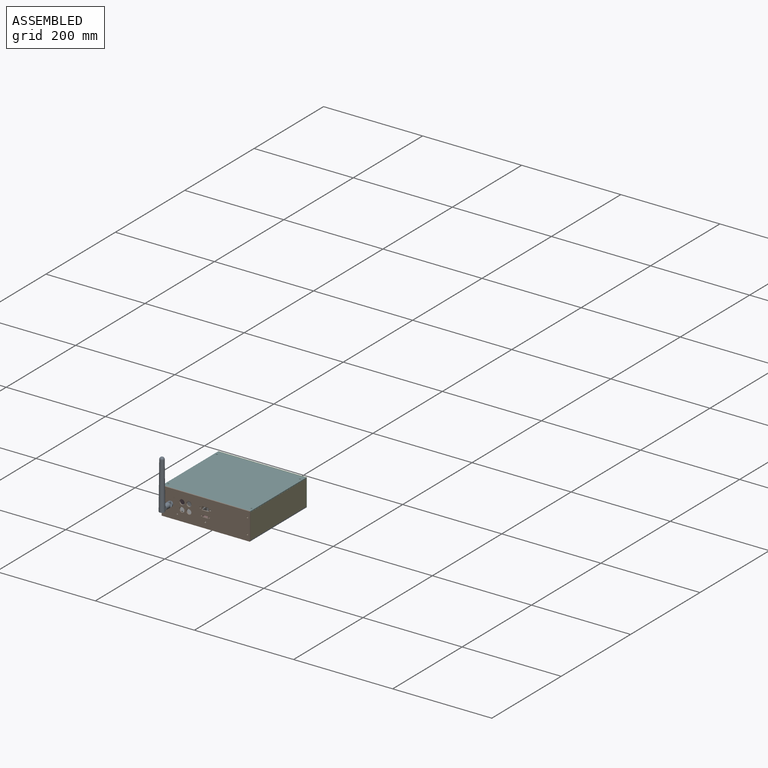
[diagram: assembled view]
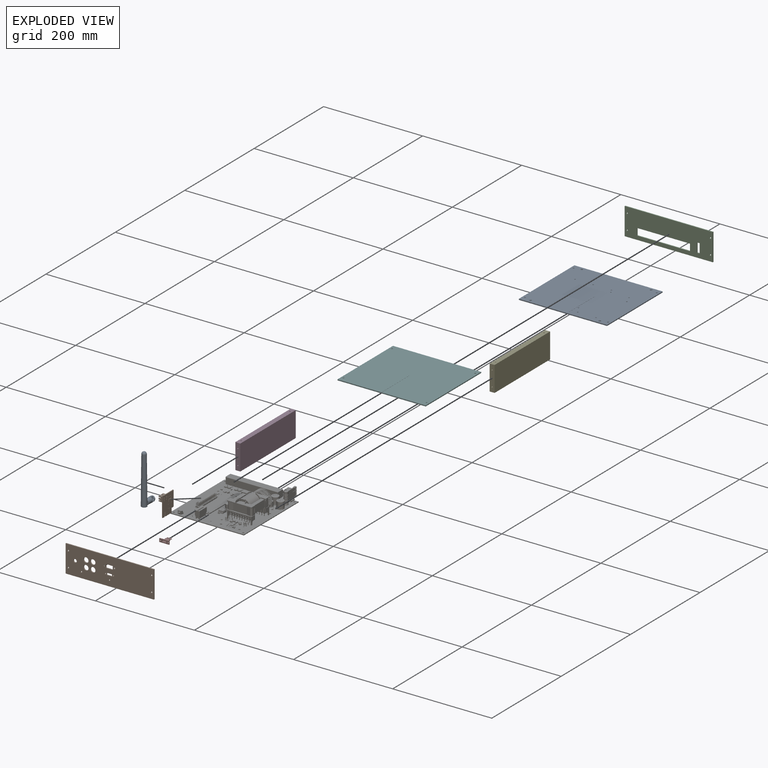
[diagram: exploded view]
GUIDED TOUR — FREECAD ASSEMBLY "enclosure"

This assembly has 10 components, labeled P0..P9 below (a component is one placed body or linked part; the same part can appear more than once), held together by 0 modeled joints plus 19 derived contact edges. A joint is a constraint between two components; its type names the relative motion it leaves free:
  CONTACT — a derived adjacency edge — the two components touch in the source model (clearance under 2% of the assembly's diagonal); it is measured from the geometry, not a modeled constraint.
Axis/direction vectors are unit vectors and 'through' points are millimeter coordinates, both in the assembly's world frame.

MATES
  1. CONTACT "contact_0_1": P0 <-> P1, contact direction (0.000, -1.000, 0.000) through (88.90, -79.95, -6.50) mm (derived from contact, not a modeled constraint)
  2. CONTACT "contact_0_2": P0 <-> P2, contact direction (0.000, 1.000, 0.000) through (-89.10, 80.05, -6.50) mm (derived from contact, not a modeled constraint)
  3. CONTACT "contact_0_3": P0 <-> P3, contact direction (0.000, 0.000, 1.000) through (-84.54, 68.76, -4.50) mm (derived from contact, not a modeled constraint)
  4. CONTACT "contact_0_4": P0 <-> P4, contact direction (0.000, 0.000, 1.000) through (83.46, -68.76, -4.50) mm (derived from contact, not a modeled constraint)
  5. CONTACT "contact_0_6": P0 <-> P6, contact direction (0.000, 0.000, 1.000) through (21.74, -66.07, -4.50) mm (derived from contact, not a modeled constraint)
  6. CONTACT "contact_1_3": P1 <-> P3, contact direction (0.000, 1.000, 0.000) through (-82.93, -79.95, 6.33) mm (derived from contact, not a modeled constraint)
  7. CONTACT "contact_1_4": P1 <-> P4, contact direction (0.000, 1.000, 0.000) through (84.74, -79.95, 35.37) mm (derived from contact, not a modeled constraint)
  8. CONTACT "contact_1_5": P1 <-> P5, contact direction (0.000, 1.000, 0.000) through (89.00, -80.95, 48.50) mm (derived from contact, not a modeled constraint)
  9. CONTACT "contact_1_6": P1 <-> P6, contact direction (0.000, 0.000, -1.000) through (-57.91, -79.33, 3.67) mm (derived from contact, not a modeled constraint)
  10. CONTACT "contact_1_7": P1 <-> P7, contact direction (0.000, 1.000, 0.000) through (8.08, -79.95, 15.00) mm (derived from contact, not a modeled constraint)
  11. CONTACT "contact_1_8": P1 <-> P8, contact direction (-1.000, 0.000, 0.000) through (-72.27, -82.25, 19.28) mm (derived from contact, not a modeled constraint)
  12. CONTACT "contact_1_9": P1 <-> P9, contact direction (0.000, 1.000, 0.000) through (-32.15, -78.61, 34.97) mm (derived from contact, not a modeled constraint)
  13. CONTACT "contact_2_3": P2 <-> P3, contact direction (0.000, -1.000, 0.000) through (-84.74, 80.05, 35.37) mm (derived from contact, not a modeled constraint)
  14. CONTACT "contact_2_4": P2 <-> P4, contact direction (0.000, -1.000, 0.000) through (83.26, 80.05, 35.37) mm (derived from contact, not a modeled constraint)
  15. CONTACT "contact_2_5": P2 <-> P5, contact direction (0.000, -1.000, 0.000) through (89.00, 80.05, 48.50) mm (derived from contact, not a modeled constraint)
  16. CONTACT "contact_2_6": P2 <-> P6, contact direction (0.000, -1.000, 0.000) through (42.88, 79.94, 1.34) mm (derived from contact, not a modeled constraint)
  17. CONTACT "contact_3_5": P3 <-> P5, contact direction (1.000, 0.000, 0.000) through (-88.95, 80.00, 46.50) mm (derived from contact, not a modeled constraint)
  18. CONTACT "contact_4_5": P4 <-> P5, contact direction (-1.000, 0.000, 0.000) through (89.05, -80.00, 46.50) mm (derived from contact, not a modeled constraint)
  19. CONTACT "contact_6_9": P6 <-> P9, contact direction (-0.483, -0.861, 0.161) through (-22.31, -53.82, 16.86) mm (derived from contact, not a modeled constraint)

ASSEMBLY ORDER
  1. P6 — the base component [order verified]
  2. P3 [order verified]
  3. P5 [order verified]
  4. P4 [order verified]
  5. P0 [order verified]
  6. P2 [order verified]
  7. P9 [order verified]
  8. P7 [order verified]
  9. P1 [order verified]
  10. P8 [order verified]
Order-tag legend:
  [order verified] — this step's position reverses a verified removal order: the component was checked to insert without passing through the ones already placed.

Of the 10 components, 6 carry a construction recipe — the FreeCAD feature program (sketches with constraints, then the solid features that consume them) that regenerates the part from scratch, quoted from this document or from the linked companion document it references; the rest are supplied as boundary geometry only. The tour below walks the components in assembly order: each is shown spotlighted twice — in the assembled view, then in the exploded view, where a leader line traces a displaced component back to its assembled socket (components that stay in place when exploded have no leader line; saturated green if recipe-attached, orange if geometry-only; every other component desaturated gray) — followed by its recipe or geometry summary and the mates that hold it.
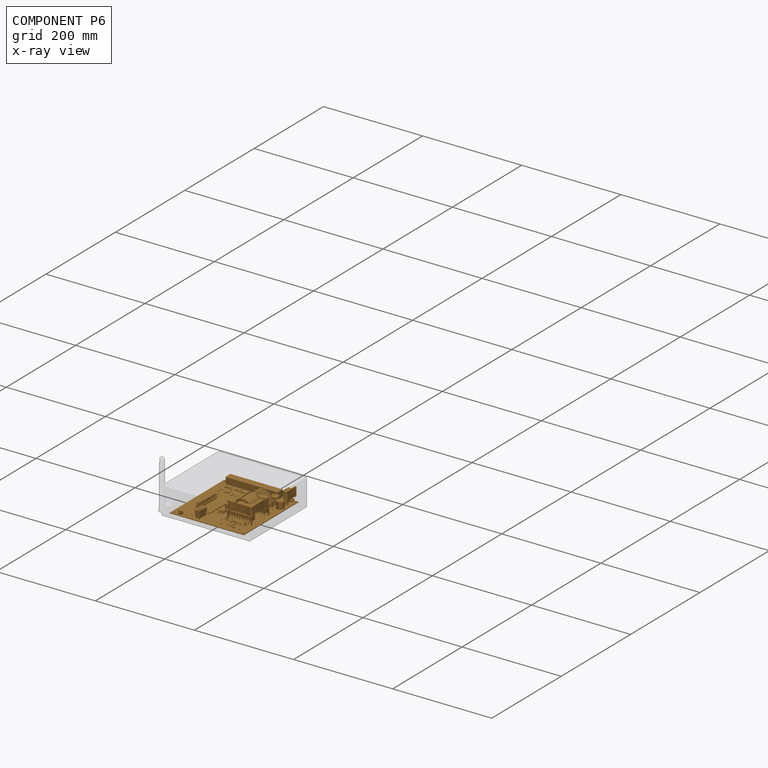
[diagram: component P6 — x-ray view]
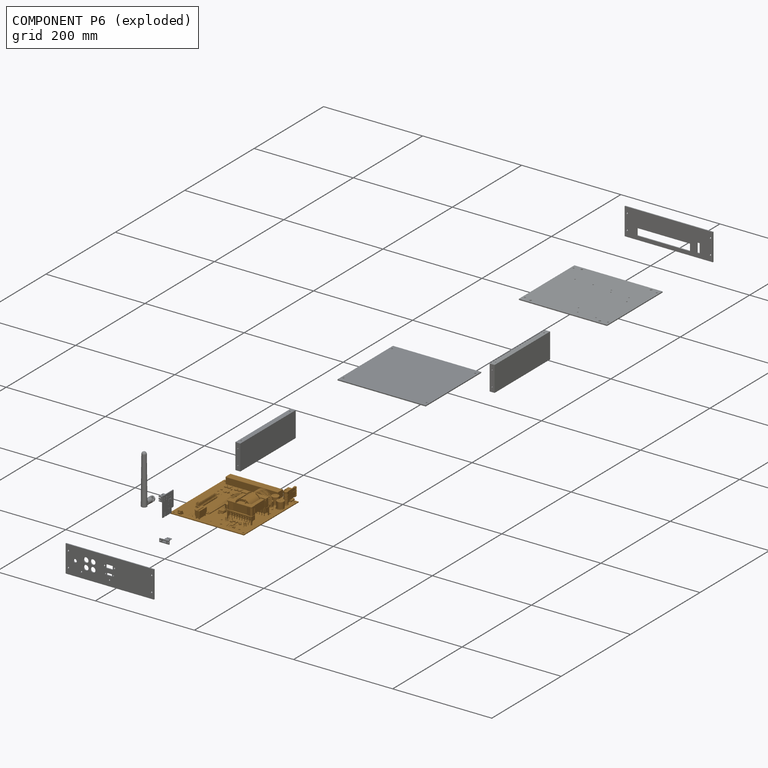
[diagram: component P6 — exploded]
COMPONENT P6 — geometry summary ("DAW-Pro4 1"; no construction recipe available for this part):
  bounding box: 170.7 x 149.9 x 52.7 mm
  tessellated surface: 439,150 triangles
  volume: 137958 mm^3 (10% of its bounding box)
Held by: resting contact with P0 (derived edge); resting contact with P1 (derived edge); resting contact with P2 (derived edge); resting contact with P9 (derived edge).
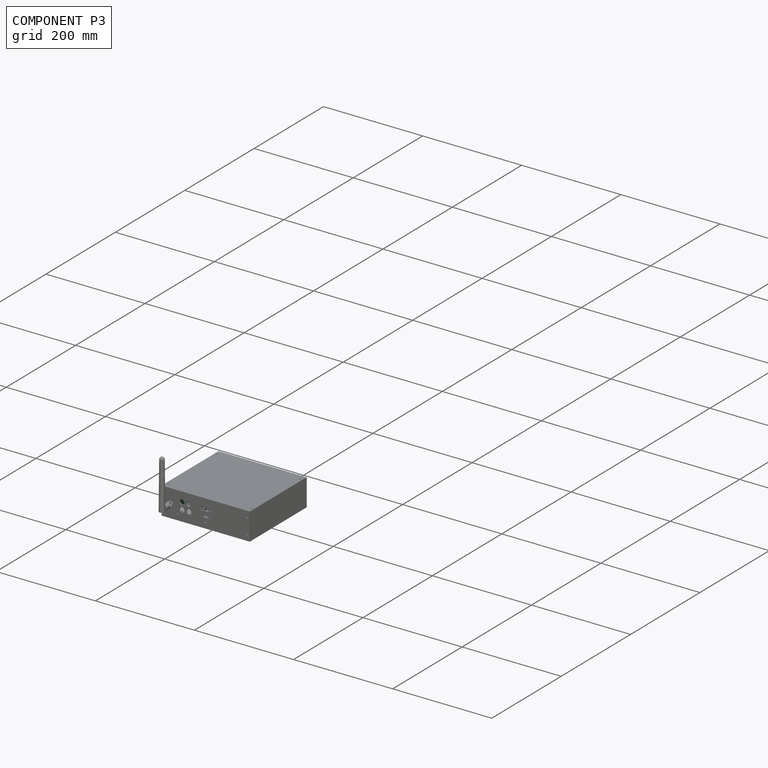
[diagram: component P3 — assembled]
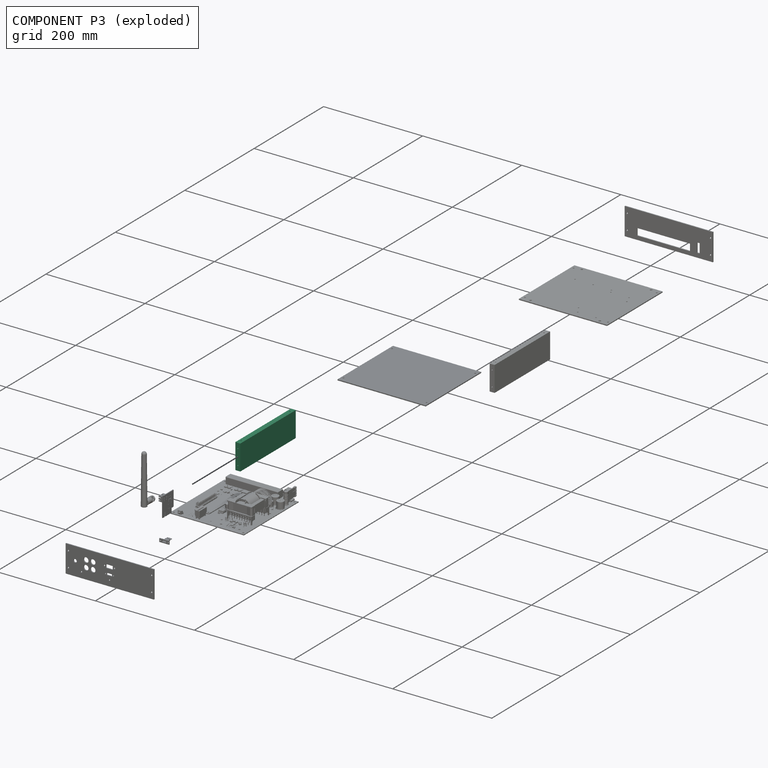
[diagram: component P3 — exploded]
COMPONENT P3 — recipe-attached ("Right", modeled in this document).
Held by: resting contact with P0 (derived edge); resting contact with P1 (derived edge); resting contact with P2 (derived edge); resting contact with P5 (derived edge).
Construction recipe (the document's own serialized feature program — sketch geometry with constraints, then the solid features built on it; lengths are millimeters unless a unit is written):

FEATURE [Sketcher::SketchObject] Sketch013
  ArcFitTolerance = 1e-06
  ExternalBSplineMaxDegree = 5
  ExternalBSplineTolerance = 0.0001
  FullyConstrained = true
  InternalTolerance = 1e-06
  InvalidShape = false
  MakeInternals = true
  MapMode = 5
  Placement = pos=(-78.8935,0,-8.8e-15) rot=(0.57735,-0.57735,-0.57735;2.0944rad)
  TreeRank = 1986
  ValidateShape = false
  sketch-geometry (4):
    g0: LineSegment StartX=-80 StartY=46.5 StartZ=0 EndX=80 EndY=46.5 EndZ=0
    g1: LineSegment StartX=80 StartY=46.5 StartZ=0 EndX=80 EndY=-4.5 EndZ=0
    g2: LineSegment StartX=80 StartY=-4.5 StartZ=0 EndX=-80 EndY=-4.5 EndZ=0
    g3: LineSegment StartX=-80 StartY=-4.5 StartZ=0 EndX=-80 EndY=46.5 EndZ=0
  constraints (12):
    c: Coincident(g0,g1)
    c: Coincident(g1,g2)
    c: Coincident(g2,g3)
    c: Coincident(g3,g0)
    c: Horizontal(g0)
    c: Horizontal(g2)
    c: Vertical(g1)
    c: Vertical(g3)
    c: DistanceX(g2,g2) = 160
    c: DistanceX(g-1,g1) = 80
    c: DistanceY(g1,g1) = 51
    c: DistanceY(g1,g-1) = 4.5
FEATURE [PartDesign::Pad] Pad003
  AddSubType = 0
  AlongSketchNormal = false
  AutoTaperInnerAngle = true
  CheckUpToFaceLimits = true
  ClaimChildren = false
  Direction = (-1,0,0)
  Fit = 0
  FitJoin = 0
  InnerFit = 0
  InnerFitJoin = 0
  InvalidShape = false
  Length = 10
  Length2 = 10
  Linearize = true
  NewSolid = false
  Profile = -> Sketch013
  ReferenceAxis = -> Sketch013 [N_Axis]
  Suppress = false
  TaperInnerAngle = 0
  TaperInnerAngleRev = 0
  TreeRank = 1987
  Type = 0
  ValidateShape = true
  _ProfileBasedVersion = 1
FEATURE [Sketcher::SketchObject] Sketch018
  ArcFitTolerance = 1e-06
  AttachmentSupport = -> [Pad003]
  ExternalBSplineMaxDegree = 5
  ExternalBSplineTolerance = 0.0001
  FullyConstrained = true
  InternalTolerance = 1e-06
  InvalidShape = false
  MakeInternals = true
  MapMode = 5
  Placement = pos=(0,0,-4.5) rot=(1,0,0;3.14159rad)
  Support = -> [Pad003]
  TreeRank = 2075
  ValidateShape = false
  sketch-geometry (2):
    g0: Circle CenterX=-84 CenterY=70 CenterZ=0 NormalX=0 NormalY=0 NormalZ=1 AngleXU=0 Radius=1.2
    g1: Circle CenterX=-84 CenterY=-70 CenterZ=0 NormalX=0 NormalY=0 NormalZ=1 AngleXU=0 Radius=1.2
  constraints (6):
    c: Diameter(g0) = 2.4
    c: Diameter(g1) = 2.4
    c: DistanceX(g0,g-1) = 84
    c: DistanceX(g1,g-1) = 84
    c: DistanceY(g-1,g0) = 70
    c: DistanceY(g1,g-1) = 70
FEATURE [PartDesign::Pocket] Pocket011
  AddSubType = 1
  AlongSketchNormal = false
  AutoTaperInnerAngle = true
  BaseFeature = -> Pad003
  CheckUpToFaceLimits = true
  ClaimChildren = false
  Direction = (0,0,1)
  Fit = 0
  FitJoin = 0
  InnerFit = 0
  InnerFitJoin = 0
  InvalidShape = false
  Length = 10
  Length2 = 10
  Linearize = true
  NewSolid = false
  Profile = -> Sketch018
  ReferenceAxis = -> Sketch018 [N_Axis]
  Suppress = false
  TaperInnerAngle = 0
  TaperInnerAngleRev = 0
  TreeRank = 2076
  Type = 0
  ValidateShape = true
  _ProfileBasedVersion = 1
  _Version = 1
FEATURE [Sketcher::SketchObject] Sketch020
  ArcFitTolerance = 1e-06
  AttachmentSupport = -> [Pocket011]
  ExternalBSplineMaxDegree = 5
  ExternalBSplineTolerance = 0.0001
  FullyConstrained = true
  InternalTolerance = 1e-06
  InvalidShape = false
  MakeInternals = true
  MapMode = 5
  Placement = pos=(0,0,46.5) rot=(0,0,1;0rad)
  Support = -> [Pocket011]
  TreeRank = 2079
  ValidateShape = false
  sketch-geometry (2):
    g0: Circle CenterX=-84 CenterY=-70 CenterZ=0 NormalX=0 NormalY=0 NormalZ=1 AngleXU=0 Radius=1.2
    g1: Circle CenterX=-84 CenterY=70 CenterZ=0 NormalX=0 NormalY=0 NormalZ=1 AngleXU=0 Radius=1.2
  constraints (6):
    c: Diameter(g0) = 2.4
    c: Diameter(g1) = 2.4
    c: DistanceX(g0,g-1) = 84
    c: DistanceX(g1,g-1) = 84
    c: DistanceY(g0,g-1) = 70
    c: DistanceY(g-1,g1) = 70
FEATURE [PartDesign::Pocket] Pocket013
  AddSubType = 1
  AlongSketchNormal = false
  AutoTaperInnerAngle = true
  BaseFeature = -> Pocket011
  CheckUpToFaceLimits = true
  ClaimChildren = false
  Direction = (0,0,-1)
  Fit = 0
  FitJoin = 0
  InnerFit = 0
  InnerFitJoin = 0
  InvalidShape = false
  Length = 10
  Length2 = 10
  Linearize = true
  NewSolid = false
  Profile = -> Sketch020
  ReferenceAxis = -> Sketch020 [N_Axis]
  Suppress = false
  TaperInnerAngle = 0
  TaperInnerAngleRev = 0
  TreeRank = 2080
  Type = 0
  ValidateShape = true
  _ProfileBasedVersion = 1
  _Version = 1
FEATURE [Sketcher::SketchObject] Sketch021
  ArcFitTolerance = 1e-06
  AttachmentSupport = -> [Pocket013]
  ExternalBSplineMaxDegree = 5
  ExternalBSplineTolerance = 0.0001
  FullyConstrained = true
  InternalTolerance = 1e-06
  InvalidShape = false
  MakeInternals = true
  MapMode = 5
  Placement = pos=(0,-80,0) rot=(1,0,0;1.5708rad)
  Support = -> [Pocket013]
  TreeRank = 2081
  ValidateShape = false
  sketch-geometry (2):
    g0: Circle CenterX=-84 CenterY=36.5 CenterZ=0 NormalX=0 NormalY=0 NormalZ=1 AngleXU=0 Radius=1.2
    g1: Circle CenterX=-84 CenterY=5.5 CenterZ=0 NormalX=0 NormalY=0 NormalZ=1 AngleXU=0 Radius=1.2
  constraints (6):
    c: Diameter(g1) = 2.4
    c: Diameter(g0) = 2.4
    c: DistanceX(g1,g-1) = 84
    c: DistanceX(g0,g-1) = 84
    c: DistanceY(g-1,g1) = 5.5
    c: DistanceY(g-1,g0) = 36.5
FEATURE [PartDesign::Pocket] Pocket014
  AddSubType = 1
  AlongSketchNormal = false
  AutoTaperInnerAngle = true
  BaseFeature = -> Pocket013
  CheckUpToFaceLimits = true
  ClaimChildren = false
  Direction = (0,1,-2e-16)
  Fit = 0
  FitJoin = 0
  InnerFit = 0
  InnerFitJoin = 0
  InvalidShape = false
  Length = 10
  Length2 = 10
  Linearize = true
  NewSolid = false
  Profile = -> Sketch021
  ReferenceAxis = -> Sketch021 [N_Axis]
  Suppress = false
  TaperInnerAngle = 0
  TaperInnerAngleRev = 0
  TreeRank = 2082
  Type = 0
  ValidateShape = true
  _ProfileBasedVersion = 1
  _Version = 1
FEATURE [Sketcher::SketchObject] Sketch024
  ArcFitTolerance = 1e-06
  AttachmentSupport = -> [Pocket014]
  ExternalBSplineMaxDegree = 5
  ExternalBSplineTolerance = 0.0001
  FullyConstrained = true
  InternalTolerance = 1e-06
  InvalidShape = false
  MakeInternals = true
  MapMode = 5
  Placement = pos=(0,80,0) rot=(0,0.707107,0.707107;3.14159rad)
  Support = -> [Pocket014]
  TreeRank = 2087
  ValidateShape = false
  sketch-geometry (2):
    g0: Circle CenterX=84 CenterY=36.5 CenterZ=0 NormalX=0 NormalY=0 NormalZ=1 AngleXU=0 Radius=1.2
    g1: Circle CenterX=84 CenterY=5.5 CenterZ=0 NormalX=0 NormalY=0 NormalZ=1 AngleXU=0 Radius=1.2
  constraints (6):
    c: Diameter(g0) = 2.4
    c: Diameter(g1) = 2.4
    c: DistanceX(g-1,g1) = 84
    c: DistanceX(g-1,g0) = 84
    c: DistanceY(g-1,g1) = 5.5
    c: DistanceY(g-1,g0) = 36.5
FEATURE [PartDesign::Pocket] Pocket017
  AddSubType = 1
  AlongSketchNormal = false
  AutoTaperInnerAngle = true
  BaseFeature = -> Pocket014
  CheckUpToFaceLimits = true
  ClaimChildren = false
  Direction = (0,-1,2e-16)
  Fit = 0
  FitJoin = 0
  InnerFit = 0
  InnerFitJoin = 0
  InvalidShape = false
  Length = 10
  Length2 = 10
  Linearize = true
  NewSolid = false
  Profile = -> Sketch024
  ReferenceAxis = -> Sketch024 [N_Axis]
  Suppress = false
  TaperInnerAngle = 0
  TaperInnerAngleRev = 0
  TreeRank = 2088
  Type = 0
  ValidateShape = true
  _ProfileBasedVersion = 1
  _Version = 1
FEATURE [PartDesign::Body] Body003  label="Right"
  AutoGroupSolids = false
  ClaimAllChildren = false
  ExportMode = 0
  Group = -> [Sketch013,Pad003,Sketch018,Pocket011,Sketch020,Pocket013,Sketch021,Pocket014,Sketch024,Pocket017]
  InvalidShape = false
  Origin = -> Origin082
  Tip = -> Pocket017
  TreeRank = 1985
  ValidateShape = false
  _ExportChildren = -> [Pad003,Pocket011,Pocket013,Pocket014,Pocket017]
  _GroupVersion = 1
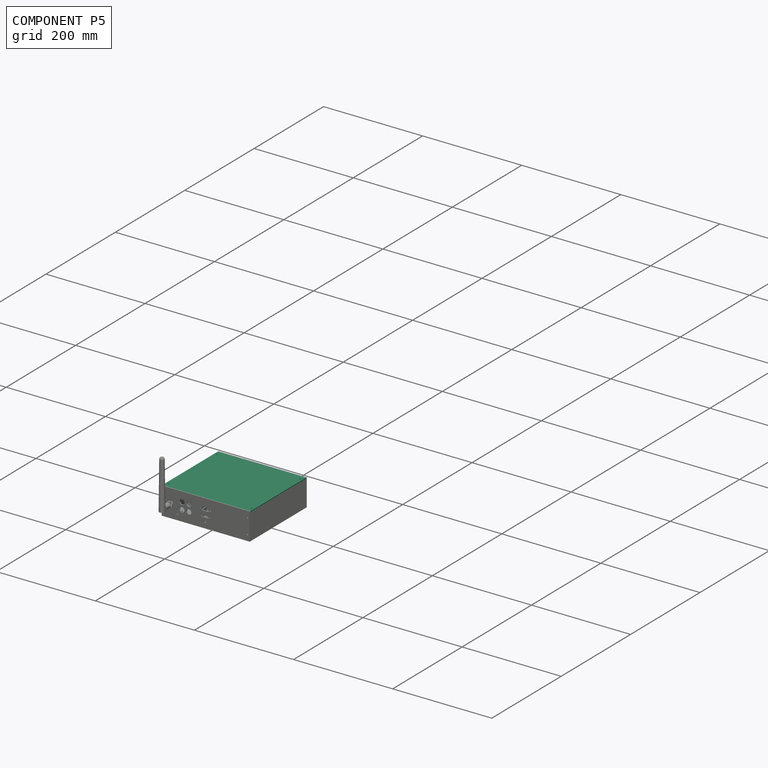
[diagram: component P5 — assembled]
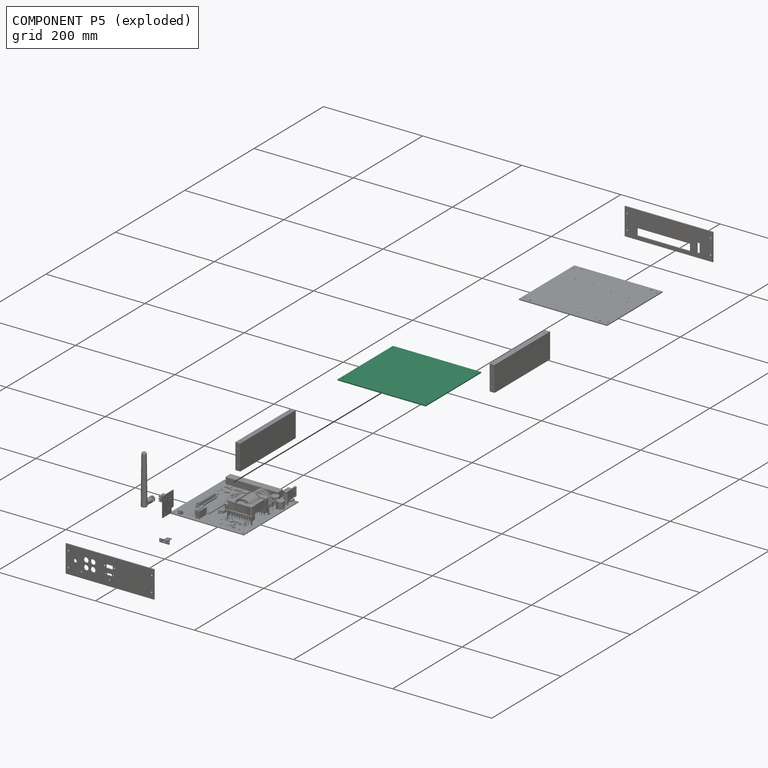
[diagram: component P5 — exploded]
COMPONENT P5 — recipe-attached ("Top", modeled in this document).
Held by: resting contact with P1 (derived edge); resting contact with P2 (derived edge); resting contact with P3 (derived edge); resting contact with P4 (derived edge).
Construction recipe (the document's own serialized feature program — sketch geometry with constraints, then the solid features built on it; lengths are millimeters unless a unit is written):

FEATURE [Sketcher::SketchObject] Sketch015
  ArcFitTolerance = 1e-06
  ExternalBSplineMaxDegree = 5
  ExternalBSplineTolerance = 0.0001
  FullyConstrained = true
  InternalTolerance = 1e-06
  InvalidShape = false
  MakeInternals = true
  MapMode = 5
  Placement = pos=(5.2e-15,0,46.5) rot=(0,0,1;0rad)
  TreeRank = 2010
  ValidateShape = false
  sketch-geometry (4):
    g0: LineSegment StartX=-89 StartY=80 StartZ=0 EndX=89 EndY=80 EndZ=0
    g1: LineSegment StartX=89 StartY=80 StartZ=0 EndX=89 EndY=-80 EndZ=0
    g2: LineSegment StartX=89 StartY=-80 StartZ=0 EndX=-89 EndY=-80 EndZ=0
    g3: LineSegment StartX=-89 StartY=-80 StartZ=0 EndX=-89 EndY=80 EndZ=0
  constraints (12):
    c: Coincident(g0,g1)
    c: Coincident(g1,g2)
    c: Coincident(g2,g3)
    c: Coincident(g3,g0)
    c: Horizontal(g0)
    c: Horizontal(g2)
    c: Vertical(g1)
    c: Vertical(g3)
    c: DistanceY(g1,g1) = 160
    c: DistanceX(g2,g2) = 178
    c: DistanceX(g-1,g1) = 89
    c: DistanceY(g1,g-1) = 80
FEATURE [PartDesign::Pad] Pad005
  AddSubType = 0
  AlongSketchNormal = false
  AutoTaperInnerAngle = true
  CheckUpToFaceLimits = true
  ClaimChildren = false
  Direction = (1e-16,0,1)
  Fit = 0
  FitJoin = 0
  InnerFit = 0
  InnerFitJoin = 0
  InvalidShape = false
  Length = 2
  Length2 = 10
  Linearize = true
  NewSolid = false
  Profile = -> Sketch015
  ReferenceAxis = -> Sketch015 [N_Axis]
  Suppress = false
  TaperInnerAngle = 0
  TaperInnerAngleRev = 0
  TreeRank = 2011
  Type = 0
  ValidateShape = true
  _ProfileBasedVersion = 1
FEATURE [Sketcher::SketchObject] Sketch016
  ArcFitTolerance = 1e-06
  AttachmentSupport = -> [Pad005]
  ExternalBSplineMaxDegree = 5
  ExternalBSplineTolerance = 0.0001
  FullyConstrained = true
  InternalTolerance = 1e-06
  InvalidShape = false
  MakeInternals = true
  MapMode = 5
  Placement = pos=(0,0,48.5) rot=(0,0,1;0rad)
  Support = -> [Pad005]
  TreeRank = 2012
  ValidateShape = false
  sketch-geometry (4):
    g0: Circle CenterX=-84 CenterY=70 CenterZ=0 NormalX=0 NormalY=0 NormalZ=1 AngleXU=0 Radius=1.5
    g1: Circle CenterX=84 CenterY=70 CenterZ=0 NormalX=0 NormalY=0 NormalZ=1 AngleXU=0 Radius=1.5
    g2: Circle CenterX=84 CenterY=-70 CenterZ=0 NormalX=0 NormalY=0 NormalZ=1 AngleXU=0 Radius=1.5
    g3: Circle CenterX=-84 CenterY=-70 CenterZ=0 NormalX=0 NormalY=0 NormalZ=1 AngleXU=0 Radius=1.5
  constraints (12):
    c: Diameter(g0) = 3
    c: DistanceX(g0,g-1) = 84
    c: DistanceY(g-1,g0) = 70
    c: Diameter(g1) = 3
    c: DistanceX(g-1,g1) = 84
    c: DistanceY(g-1,g1) = 70
    c: Diameter(g2) = 3
    c: DistanceX(g-1,g2) = 84
    c: DistanceY(g2,g-1) = 70
    c: Diameter(g3) = 3
    c: DistanceX(g3,g-1) = 84
    c: DistanceY(g3,g-1) = 70
FEATURE [PartDesign::Pocket] Pocket009
  AddSubType = 1
  AlongSketchNormal = false
  AutoTaperInnerAngle = true
  BaseFeature = -> Pad005
  CheckUpToFaceLimits = true
  ClaimChildren = false
  Direction = (0,0,-1)
  Fit = 0
  FitJoin = 0
  InnerFit = 0
  InnerFitJoin = 0
  InvalidShape = false
  Length = 2
  Length2 = 10
  Linearize = true
  NewSolid = false
  Profile = -> Sketch016
  ReferenceAxis = -> Sketch016 [N_Axis]
  Suppress = false
  TaperInnerAngle = 0
  TaperInnerAngleRev = 0
  TreeRank = 2013
  Type = 0
  ValidateShape = true
  _ProfileBasedVersion = 1
  _Version = 1
FEATURE [PartDesign::Body] Body005  label="Top"
  AutoGroupSolids = false
  ClaimAllChildren = false
  ExportMode = 0
  Group = -> [Sketch015,Pad005,Sketch016,Pocket009]
  InvalidShape = false
  Origin = -> Origin084
  Tip = -> Pocket009
  TreeRank = 2009
  ValidateShape = false
  _ExportChildren = -> [Pad005,Pocket009]
  _GroupVersion = 1
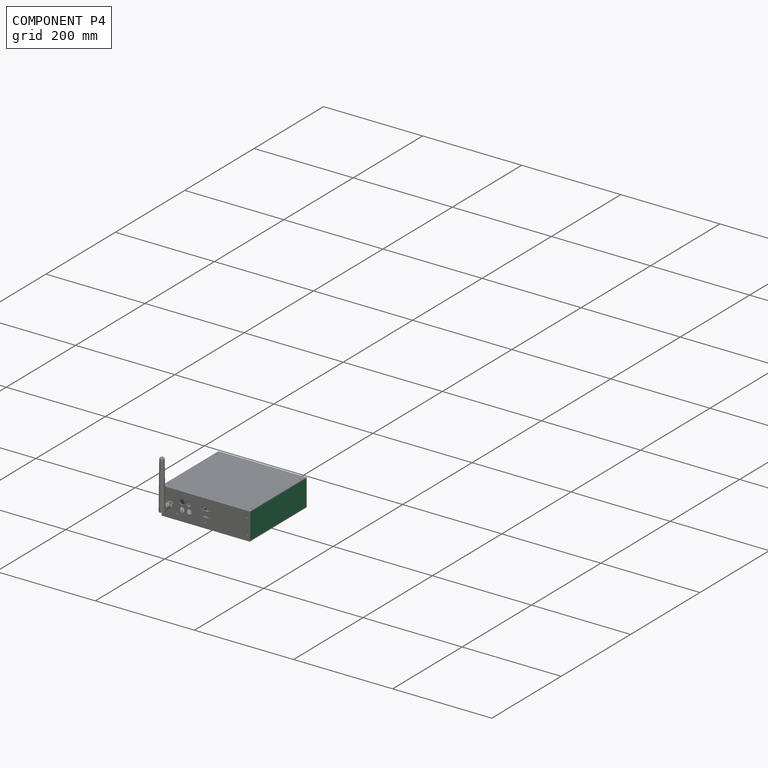
[diagram: component P4 — assembled]
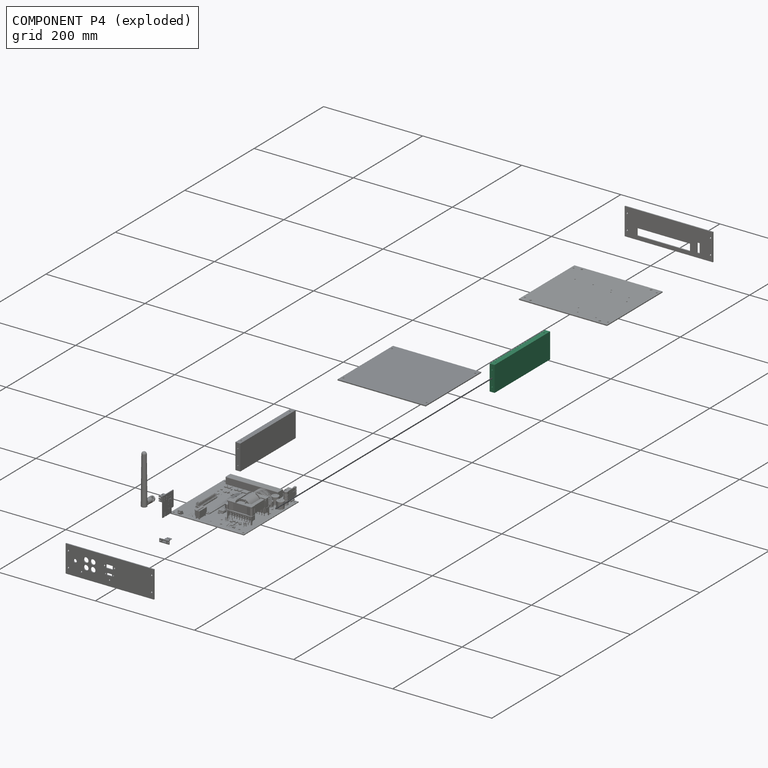
[diagram: component P4 — exploded]
COMPONENT P4 — recipe-attached ("Left", modeled in this document).
Held by: resting contact with P0 (derived edge); resting contact with P1 (derived edge); resting contact with P2 (derived edge); resting contact with P5 (derived edge).
Construction recipe (the document's own serialized feature program — sketch geometry with constraints, then the solid features built on it; lengths are millimeters unless a unit is written):

FEATURE [Sketcher::SketchObject] Sketch014
  ArcFitTolerance = 1e-06
  ExternalBSplineMaxDegree = 5
  ExternalBSplineTolerance = 0.0001
  FullyConstrained = true
  InternalTolerance = 1e-06
  InvalidShape = false
  MakeInternals = true
  MapMode = 5
  Placement = pos=(79.1065,0,-8.8e-15) rot=(0.57735,0.57735,0.57735;2.0944rad)
  TreeRank = 1998
  ValidateShape = false
  sketch-geometry (4):
    g0: LineSegment StartX=-80 StartY=46.5 StartZ=0 EndX=80 EndY=46.5 EndZ=0
    g1: LineSegment StartX=80 StartY=46.5 StartZ=0 EndX=80 EndY=-4.5 EndZ=0
    g2: LineSegment StartX=80 StartY=-4.5 StartZ=0 EndX=-80 EndY=-4.5 EndZ=0
    g3: LineSegment StartX=-80 StartY=-4.5 StartZ=0 EndX=-80 EndY=46.5 EndZ=0
  constraints (12):
    c: Coincident(g0,g1)
    c: Coincident(g1,g2)
    c: Coincident(g2,g3)
    c: Coincident(g3,g0)
    c: Horizontal(g0)
    c: Horizontal(g2)
    c: Vertical(g1)
    c: Vertical(g3)
    c: DistanceX(g0,g0) = 160
    c: DistanceX(g2,g-1) = 80
    c: DistanceY(g1,g1) = 51
    c: DistanceY(g1,g-1) = 4.5
FEATURE [PartDesign::Pad] Pad004
  AddSubType = 0
  AlongSketchNormal = false
  AutoTaperInnerAngle = true
  CheckUpToFaceLimits = true
  ClaimChildren = false
  Direction = (1,0,0)
  Fit = 0
  FitJoin = 0
  InnerFit = 0
  InnerFitJoin = 0
  InvalidShape = false
  Length = 10
  Length2 = 10
  Linearize = true
  NewSolid = false
  Profile = -> Sketch014
  ReferenceAxis = -> Sketch014 [N_Axis]
  Suppress = false
  TaperInnerAngle = 0
  TaperInnerAngleRev = 0
  TreeRank = 1999
  Type = 0
  ValidateShape = true
  _ProfileBasedVersion = 1
FEATURE [Sketcher::SketchObject] Sketch017
  ArcFitTolerance = 1e-06
  AttachmentSupport = -> [Pad004]
  ExternalBSplineMaxDegree = 5
  ExternalBSplineTolerance = 0.0001
  FullyConstrained = true
  InternalTolerance = 1e-06
  InvalidShape = false
  MakeInternals = true
  MapMode = 5
  Placement = pos=(0,0,-4.5) rot=(1,0,0;3.14159rad)
  Support = -> [Pad004]
  TreeRank = 2073
  ValidateShape = false
  sketch-geometry (2):
    g0: Circle CenterX=84 CenterY=70 CenterZ=0 NormalX=0 NormalY=0 NormalZ=1 AngleXU=0 Radius=1.2
    g1: Circle CenterX=84 CenterY=-70 CenterZ=0 NormalX=0 NormalY=0 NormalZ=1 AngleXU=0 Radius=1.2
  constraints (6):
    c: Diameter(g0) = 2.4
    c: Diameter(g1) = 2.4
    c: DistanceX(g-1,g0) = 84
    c: DistanceX(g-1,g1) = 84
    c: DistanceY(g-1,g0) = 70
    c: DistanceY(g1,g-1) = 70
FEATURE [PartDesign::Pocket] Pocket010
  AddSubType = 1
  AlongSketchNormal = false
  AutoTaperInnerAngle = true
  BaseFeature = -> Pad004
  CheckUpToFaceLimits = true
  ClaimChildren = false
  Direction = (0,0,1)
  Fit = 0
  FitJoin = 0
  InnerFit = 0
  InnerFitJoin = 0
  InvalidShape = false
  Length = 10
  Length2 = 10
  Linearize = true
  NewSolid = false
  Profile = -> Sketch017
  ReferenceAxis = -> Sketch017 [N_Axis]
  Suppress = false
  TaperInnerAngle = 0
  TaperInnerAngleRev = 0
  TreeRank = 2074
  Type = 0
  ValidateShape = true
  _ProfileBasedVersion = 1
  _Version = 1
FEATURE [Sketcher::SketchObject] Sketch019
  ArcFitTolerance = 1e-06
  AttachmentSupport = -> [Pocket010]
  ExternalBSplineMaxDegree = 5
  ExternalBSplineTolerance = 0.0001
  FullyConstrained = true
  InternalTolerance = 1e-06
  InvalidShape = false
  MakeInternals = true
  MapMode = 5
  Placement = pos=(0,0,46.5) rot=(0,0,1;0rad)
  Support = -> [Pocket010]
  TreeRank = 2077
  ValidateShape = false
  sketch-geometry (2):
    g0: Circle CenterX=84 CenterY=-70 CenterZ=0 NormalX=0 NormalY=0 NormalZ=1 AngleXU=0 Radius=1.2
    g1: Circle CenterX=84 CenterY=70 CenterZ=0 NormalX=0 NormalY=0 NormalZ=1 AngleXU=0 Radius=1.2
  constraints (6):
    c: Diameter(g0) = 2.4
    c: Diameter(g1) = 2.4
    c: DistanceX(g-1,g0) = 84
    c: DistanceX(g-1,g1) = 84
    c: DistanceY(g0,g-1) = 70
    c: DistanceY(g-1,g1) = 70
FEATURE [PartDesign::Pocket] Pocket012
  AddSubType = 1
  AlongSketchNormal = false
  AutoTaperInnerAngle = true
  BaseFeature = -> Pocket010
  CheckUpToFaceLimits = true
  ClaimChildren = false
  Direction = (0,0,-1)
  Fit = 0
  FitJoin = 0
  InnerFit = 0
  InnerFitJoin = 0
  InvalidShape = false
  Length = 10
  Length2 = 10
  Linearize = true
  NewSolid = false
  Profile = -> Sketch019
  ReferenceAxis = -> Sketch019 [N_Axis]
  Suppress = false
  TaperInnerAngle = 0
  TaperInnerAngleRev = 0
  TreeRank = 2078
  Type = 0
  ValidateShape = true
  _ProfileBasedVersion = 1
  _Version = 1
FEATURE [Sketcher::SketchObject] Sketch022
  ArcFitTolerance = 1e-06
  AttachmentSupport = -> [Pocket012]
  ExternalBSplineMaxDegree = 5
  ExternalBSplineTolerance = 0.0001
  FullyConstrained = true
  InternalTolerance = 1e-06
  InvalidShape = false
  MakeInternals = true
  MapMode = 5
  Placement = pos=(0,-80,0) rot=(1,0,0;1.5708rad)
  Support = -> [Pocket012]
  TreeRank = 2083
  ValidateShape = false
  sketch-geometry (2):
    g0: Circle CenterX=84 CenterY=36.5 CenterZ=0 NormalX=0 NormalY=0 NormalZ=1 AngleXU=0 Radius=1.2
    g1: Circle CenterX=84 CenterY=5.5 CenterZ=0 NormalX=0 NormalY=0 NormalZ=1 AngleXU=0 Radius=1.2
  constraints (6):
    c: Diameter(g1) = 2.4
    c: Diameter(g0) = 2.4
    c: DistanceX(g-1,g1) = 84
    c: DistanceX(g-1,g0) = 84
    c: DistanceY(g-1,g1) = 5.5
    c: DistanceY(g-1,g0) = 36.5
FEATURE [PartDesign::Pocket] Pocket015
  AddSubType = 1
  AlongSketchNormal = false
  AutoTaperInnerAngle = true
  BaseFeature = -> Pocket012
  CheckUpToFaceLimits = true
  ClaimChildren = false
  Direction = (0,1,-2e-16)
  Fit = 0
  FitJoin = 0
  InnerFit = 0
  InnerFitJoin = 0
  InvalidShape = false
  Length = 10
  Length2 = 10
  Linearize = true
  NewSolid = false
  Profile = -> Sketch022
  ReferenceAxis = -> Sketch022 [N_Axis]
  Suppress = false
  TaperInnerAngle = 0
  TaperInnerAngleRev = 0
  TreeRank = 2084
  Type = 0
  ValidateShape = true
  _ProfileBasedVersion = 1
  _Version = 1
FEATURE [Sketcher::SketchObject] Sketch023
  ArcFitTolerance = 1e-06
  AttachmentSupport = -> [Pocket015]
  ExternalBSplineMaxDegree = 5
  ExternalBSplineTolerance = 0.0001
  FullyConstrained = true
  InternalTolerance = 1e-06
  InvalidShape = false
  MakeInternals = true
  MapMode = 5
  Placement = pos=(0,80,0) rot=(0,0.707107,0.707107;3.14159rad)
  Support = -> [Pocket015]
  TreeRank = 2085
  ValidateShape = false
  sketch-geometry (2):
    g0: Circle CenterX=-84 CenterY=36.5 CenterZ=0 NormalX=0 NormalY=0 NormalZ=1 AngleXU=0 Radius=1.2
    g1: Circle CenterX=-84 CenterY=5.5 CenterZ=0 NormalX=0 NormalY=0 NormalZ=1 AngleXU=0 Radius=1.2
  constraints (6):
    c: Diameter(g0) = 2.4
    c: Diameter(g1) = 2.4
    c: DistanceX(g1,g-1) = 84
    c: DistanceX(g0,g-1) = 84
    c: DistanceY(g-1,g1) = 5.5
    c: DistanceY(g-1,g0) = 36.5
FEATURE [PartDesign::Pocket] Pocket016
  AddSubType = 1
  AlongSketchNormal = false
  AutoTaperInnerAngle = true
  BaseFeature = -> Pocket015
  CheckUpToFaceLimits = true
  ClaimChildren = false
  Direction = (0,-1,2e-16)
  Fit = 0
  FitJoin = 0
  InnerFit = 0
  InnerFitJoin = 0
  InvalidShape = false
  Length = 10
  Length2 = 10
  Linearize = true
  NewSolid = false
  Profile = -> Sketch023
  ReferenceAxis = -> Sketch023 [N_Axis]
  Suppress = false
  TaperInnerAngle = 0
  TaperInnerAngleRev = 0
  TreeRank = 2086
  Type = 0
  ValidateShape = true
  _ProfileBasedVersion = 1
  _Version = 1
FEATURE [PartDesign::Body] Body004  label="Left"
  AutoGroupSolids = false
  ClaimAllChildren = false
  ExportMode = 0
  Group = -> [Sketch014,Pad004,Sketch017,Pocket010,Sketch019,Pocket012,Sketch022,Pocket015,Sketch023,Pocket016]
  InvalidShape = false
  Origin = -> Origin083
  Tip = -> Pocket016
  TreeRank = 1997
  ValidateShape = false
  _ExportChildren = -> [Pad004,Pocket010,Pocket012,Pocket015,Pocket016]
  _GroupVersion = 1
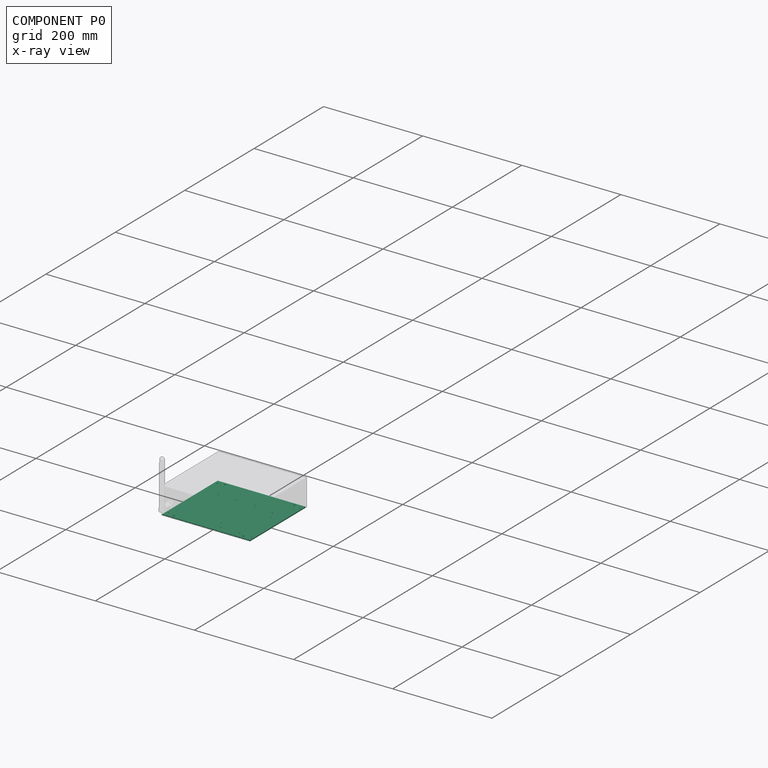
[diagram: component P0 — x-ray view]
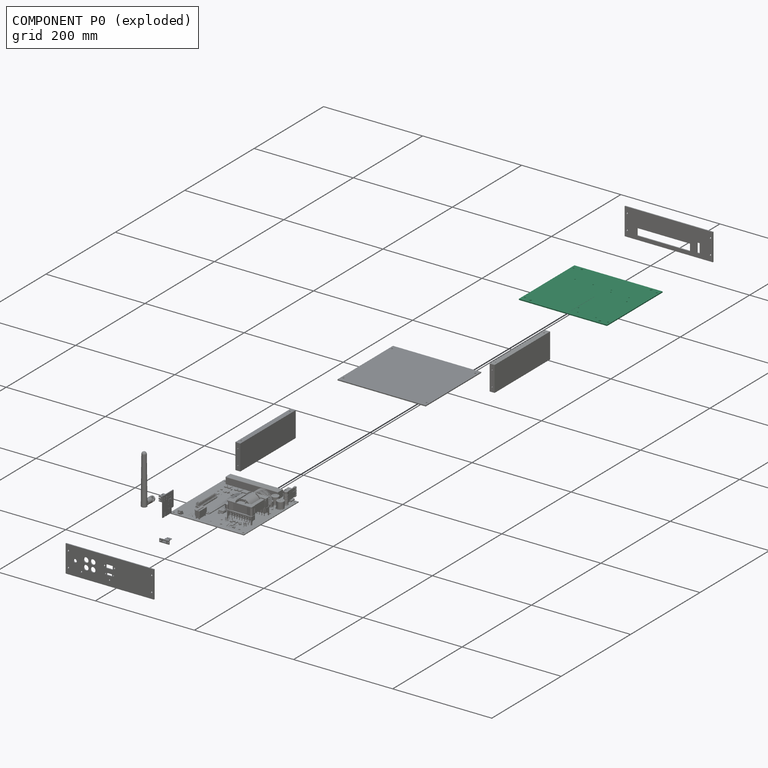
[diagram: component P0 — exploded]
COMPONENT P0 — recipe-attached ("Bottom", modeled in this document).
Held by: resting contact with P1 (derived edge); resting contact with P2 (derived edge); resting contact with P3 (derived edge); resting contact with P4 (derived edge); resting contact with P6 (derived edge).
Construction recipe (the document's own serialized feature program — sketch geometry with constraints, then the solid features built on it; lengths are millimeters unless a unit is written):

FEATURE [Sketcher::SketchObject] Sketch
  ArcFitTolerance = 1e-06
  ExternalBSplineMaxDegree = 5
  ExternalBSplineTolerance = 0.0001
  FullyConstrained = false
  InternalTolerance = 1e-06
  InvalidShape = false
  MakeInternals = true
  Placement = pos=(0,0,-4.5) rot=(0,0,1;0rad)
  TreeRank = 1879
  ValidateShape = false
  sketch-geometry (4):
    g0: LineSegment StartX=-89.1936 StartY=80 StartZ=0 EndX=88.8064 EndY=80 EndZ=0
    g1: LineSegment StartX=88.8064 StartY=80 StartZ=0 EndX=88.8064 EndY=-80 EndZ=0
    g2: LineSegment StartX=88.8064 StartY=-80 StartZ=0 EndX=-89.1936 EndY=-80 EndZ=0
    g3: LineSegment StartX=-89.1936 StartY=-80 StartZ=0 EndX=-89.1936 EndY=80 EndZ=0
  constraints (11):
    c: Coincident(g0,g1)
    c: Coincident(g1,g2)
    c: Coincident(g2,g3)
    c: Coincident(g3,g0)
    c: Horizontal(g0)
    c: Horizontal(g2)
    c: Vertical(g1)
    c: Vertical(g3)
    c: DistanceX(g2,g2) = 178
    c: DistanceY(g1,g1) = 160
    c: DistanceY(g1,g-1) = 80
FEATURE [PartDesign::Pad] Pad
  AddSubType = 0
  AlongSketchNormal = false
  AutoTaperInnerAngle = true
  CheckUpToFaceLimits = true
  ClaimChildren = false
  Direction = (0,0,1)
  Fit = 0
  FitJoin = 0
  InnerFit = 0
  InnerFitJoin = 0
  InvalidShape = false
  Length = 2
  Length2 = 10
  Linearize = true
  NewSolid = false
  Profile = -> Sketch
  ReferenceAxis = -> Sketch [N_Axis]
  Reversed = true
  Suppress = false
  TaperInnerAngle = 0
  TaperInnerAngleRev = 0
  TreeRank = 1880
  Type = 0
  ValidateShape = true
  _ProfileBasedVersion = 1
FEATURE [Sketcher::SketchObject] Sketch001
  ArcFitTolerance = 1e-06
  AttachmentSupport = -> [Pad]
  ExternalBSplineMaxDegree = 5
  ExternalBSplineTolerance = 0.0001
  FullyConstrained = true
  InternalTolerance = 1e-06
  InvalidShape = false
  MakeInternals = true
  MapMode = 5
  Placement = pos=(0,0,-4.5) rot=(0,0,1;0rad)
  Support = -> [Pad]
  TreeRank = 1881
  ValidateShape = false
  sketch-geometry (17):
    g0: Circle CenterX=-69.85 CenterY=-73.8 CenterZ=0 NormalX=0 NormalY=0 NormalZ=1 AngleXU=0 Radius=2
    g1: Circle CenterX=69.85 CenterY=-73.8 CenterZ=0 NormalX=0 NormalY=0 NormalZ=1 AngleXU=0 Radius=2
    g2: Circle CenterX=69.85 CenterY=73.8 CenterZ=0 NormalX=0 NormalY=0 NormalZ=1 AngleXU=0 Radius=2
    g3: Circle CenterX=-69.85 CenterY=73.8 CenterZ=0 NormalX=0 NormalY=0 NormalZ=1 AngleXU=0 Radius=2
    g4: Circle CenterX=-57.15 CenterY=35.7 CenterZ=0 NormalX=0 NormalY=0 NormalZ=1 AngleXU=0 Radius=1.25
    g5: Circle CenterX=-20.3 CenterY=35.7 CenterZ=0 NormalX=0 NormalY=0 NormalZ=1 AngleXU=0 Radius=1.25
    g6: Circle CenterX=16.5 CenterY=35.7 CenterZ=0 NormalX=0 NormalY=0 NormalZ=1 AngleXU=0 Radius=1.25
    g7: Circle CenterX=20.6 CenterY=28.2 CenterZ=0 NormalX=0 NormalY=0 NormalZ=1 AngleXU=0 Radius=1.25
    g8: Circle CenterX=57.4 CenterY=28.2 CenterZ=0 NormalX=0 NormalY=0 NormalZ=1 AngleXU=0 Radius=1.25
    g9: Circle CenterX=63.4 CenterY=13.1 CenterZ=0 NormalX=0 NormalY=0 NormalZ=1 AngleXU=0 Radius=1.25
    g10: Circle CenterX=11.55 CenterY=-52.35 CenterZ=0 NormalX=0 NormalY=0 NormalZ=1 AngleXU=0 Radius=1.25
    g11: Circle CenterX=20.5 CenterY=-67 CenterZ=0 NormalX=0 NormalY=0 NormalZ=1 AngleXU=0 Radius=1.25
    g12: Circle CenterX=57.3 CenterY=-67 CenterZ=0 NormalX=0 NormalY=0 NormalZ=1 AngleXU=0 Radius=1.25
    g13: Circle CenterX=-84 CenterY=70 CenterZ=0 NormalX=0 NormalY=0 NormalZ=1 AngleXU=0 Radius=1.5
    g14: Circle CenterX=84 CenterY=70 CenterZ=0 NormalX=0 NormalY=0 NormalZ=1 AngleXU=0 Radius=1.5
    g15: Circle CenterX=84 CenterY=-70 CenterZ=0 NormalX=0 NormalY=0 NormalZ=1 AngleXU=0 Radius=1.5
    g16: Circle CenterX=-84 CenterY=-70 CenterZ=0 NormalX=0 NormalY=0 NormalZ=1 AngleXU=0 Radius=1.5
  constraints (51):
    c: Diameter(g0) = 4
    c: DistanceX(g0,g-1) = 69.85
    c: Diameter(g1) = 4
    c: DistanceX(g-1,g1) = 69.85
    c: Diameter(g2) = 4
    c: DistanceX(g-1,g2) = 69.85
    c: Diameter(g3) = 4
    c: DistanceX(g3,g-1) = 69.85
    c: DistanceY(g-1,g3) = 73.8
    c: DistanceY(g0,g-1) = 73.8
    c: DistanceY(g-1,g2) = 73.8
    c: DistanceY(g1,g-1) = 73.8
    c: Diameter(g4) = 2.5
    c: Equal(g7,g6)
    c: Equal(g7,g5)
    c: Diameter(g7) = 2.5
    c: DistanceX(g-1,g6) = 16.5
    c: DistanceY(g-1,g6) = 35.7
    c: DistanceX(g-1,g7) = 20.6
    c: DistanceY(g-1,g7) = 28.2
    c: Diameter(g8) = 2.5
    c: DistanceY(g-1,g8) = 28.2
    c: DistanceX(g-1,g8) = 57.4
    c: DistanceY(g-1,g5) = 35.7
    c: DistanceY(g-1,g4) = 35.7
    c: DistanceX(g5,g-1) = 20.3
    c: DistanceX(g4,g-1) = 57.15
    c: Diameter(g9) = 2.5
    c: DistanceY(g-1,g9) = 13.1
    c: DistanceX(g-1,g9) = 63.4
    c: Diameter(g10) = 2.5
    c: Diameter(g11) = 2.5
    c: Diameter(g12) = 2.5
    c: DistanceX(g-1,g10) = 11.55
    c: DistanceY(g10,g-1) = 52.35
    c: DistanceY(g11,g-1) = 67
    c: DistanceX(g-1,g11) = 20.5
    c: DistanceY(g12,g-1) = 67
    c: DistanceX(g-1,g12) = 57.3
    c: Diameter(g13) = 3
    c: Diameter(g14) = 3
    c: Diameter(g15) = 3
    c: Diameter(g16) = 3
    c: DistanceY(g-1,g13) = 70
    c: DistanceX(g13,g-1) = 84
    c: DistanceX(g-1,g14) = 84
    c: DistanceY(g-1,g14) = 70
    c: DistanceY(g15,g-1) = 70
    c: DistanceX(g-1,g15) = 84
    c: DistanceX(g16,g-1) = 84
    c: DistanceY(g16,g-1) = 70
FEATURE [PartDesign::Pocket] Pocket
  AddSubType = 1
  AlongSketchNormal = false
  AutoTaperInnerAngle = true
  BaseFeature = -> Pad
  CheckUpToFaceLimits = true
  ClaimChildren = false
  Direction = (0,0,-1)
  Fit = 0
  FitJoin = 0
  InnerFit = 0
  InnerFitJoin = 0
  InvalidShape = false
  Length = 2
  Length2 = 10
  Linearize = true
  NewSolid = false
  Profile = -> Sketch001
  ReferenceAxis = -> Sketch001 [N_Axis]
  Suppress = false
  TaperInnerAngle = 0
  TaperInnerAngleRev = 0
  TreeRank = 1882
  Type = 0
  ValidateShape = true
  _ProfileBasedVersion = 1
  _Version = 1
FEATURE [PartDesign::Body] Body  label="Bottom"
  AutoGroupSolids = false
  ClaimAllChildren = false
  ExportMode = 0
  Group = -> [Sketch,Pad,Sketch001,Pocket]
  InvalidShape = false
  Origin = -> Origin033
  Tip = -> Pocket
  TreeRank = 944
  ValidateShape = false
  _ExportChildren = -> [Pad,Pocket]
  _GroupVersion = 1
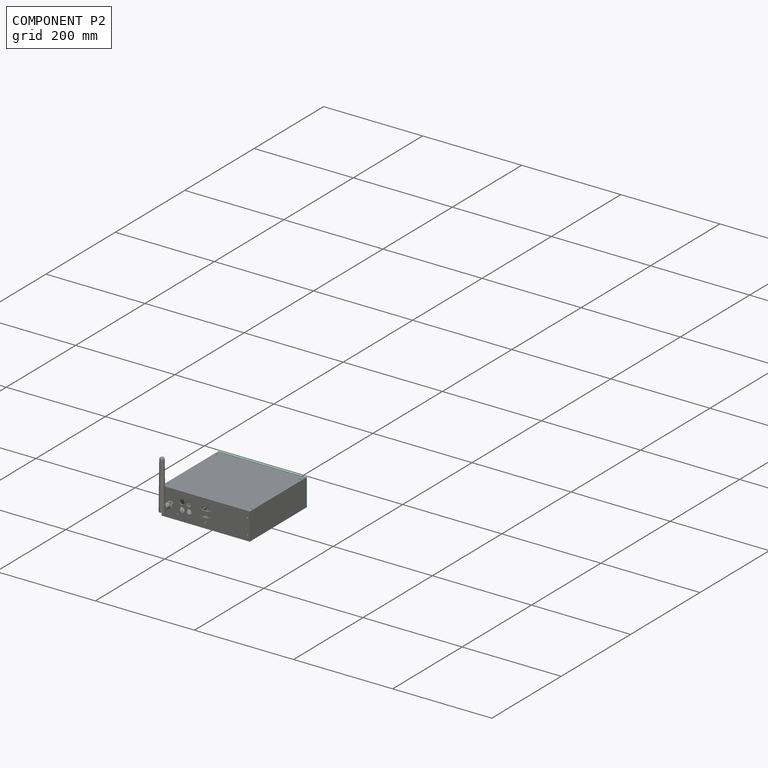
[diagram: component P2 — assembled]
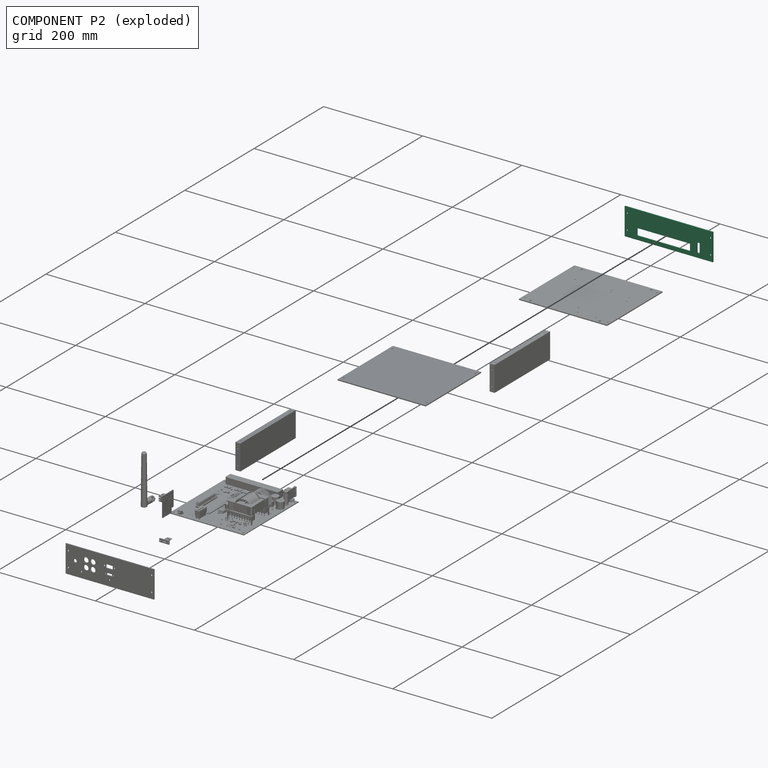
[diagram: component P2 — exploded]
COMPONENT P2 — recipe-attached ("Back", modeled in this document).
Held by: resting contact with P0 (derived edge); resting contact with P3 (derived edge); resting contact with P4 (derived edge); resting contact with P5 (derived edge); resting contact with P6 (derived edge).
Construction recipe (the document's own serialized feature program — sketch geometry with constraints, then the solid features built on it; lengths are millimeters unless a unit is written):

FEATURE [Sketcher::SketchObject] Sketch011
  ArcFitTolerance = 1e-06
  ExternalBSplineMaxDegree = 5
  ExternalBSplineTolerance = 0.0001
  FullyConstrained = true
  InternalTolerance = 1e-06
  InvalidShape = false
  MakeInternals = true
  MapMode = 5
  Placement = pos=(0,80.1043,-8.9e-15) rot=(0,0.707107,0.707107;3.14159rad)
  TreeRank = 1972
  ValidateShape = false
  sketch-geometry (4):
    g0: LineSegment StartX=-89 StartY=48.5 StartZ=0 EndX=89 EndY=48.5 EndZ=0
    g1: LineSegment StartX=89 StartY=48.5 StartZ=0 EndX=89 EndY=-6.5 EndZ=0
    g2: LineSegment StartX=89 StartY=-6.5 StartZ=0 EndX=-89 EndY=-6.5 EndZ=0
    g3: LineSegment StartX=-89 StartY=-6.5 StartZ=0 EndX=-89 EndY=48.5 EndZ=0
  constraints (12):
    c: Coincident(g0,g1)
    c: Coincident(g1,g2)
    c: Coincident(g2,g3)
    c: Coincident(g3,g0)
    c: Horizontal(g0)
    c: Horizontal(g2)
    c: Vertical(g1)
    c: Vertical(g3)
    c: DistanceY(g1,g1) = 55
    c: DistanceY(g1,g-1) = 6.5
    c: DistanceX(g2,g2) = 178
    c: DistanceX(g-1,g1) = 89
FEATURE [PartDesign::Pad] Pad002
  AddSubType = 0
  AlongSketchNormal = false
  AutoTaperInnerAngle = true
  CheckUpToFaceLimits = true
  ClaimChildren = false
  Direction = (0,1,-2e-16)
  Fit = 0
  FitJoin = 0
  InnerFit = 0
  InnerFitJoin = 0
  InvalidShape = false
  Length = 2
  Length2 = 10
  Linearize = true
  NewSolid = false
  Profile = -> Sketch011
  ReferenceAxis = -> Sketch011 [N_Axis]
  Suppress = false
  TaperInnerAngle = 0
  TaperInnerAngleRev = 0
  TreeRank = 1973
  Type = 0
  ValidateShape = true
  _ProfileBasedVersion = 1
FEATURE [Sketcher::SketchObject] Sketch012
  ArcFitTolerance = 1e-06
  AttachmentSupport = -> [Pad002]
  ExternalBSplineMaxDegree = 5
  ExternalBSplineTolerance = 0.0001
  FullyConstrained = false
  InternalTolerance = 1e-06
  InvalidShape = false
  MakeInternals = true
  MapMode = 5
  Placement = pos=(0,82.1043,-2.13e-14) rot=(0,0.707107,0.707107;3.14159rad)
  Support = -> [Pad002]
  TreeRank = 1974
  ValidateShape = false
  sketch-geometry (12):
    g0: LineSegment StartX=-62.5 StartY=21.2199 StartZ=0 EndX=-57 EndY=21.2199 EndZ=0
    g1: LineSegment StartX=-57 StartY=21.2199 StartZ=0 EndX=-57 EndY=2.21993 EndZ=0
    g2: LineSegment StartX=-57 StartY=2.21993 StartZ=0 EndX=-62.5 EndY=2.21993 EndZ=0
    g3: LineSegment StartX=-62.5 StartY=2.21993 StartZ=0 EndX=-62.5 EndY=21.2199 EndZ=0
    g4: LineSegment StartX=-43 StartY=15.2371 StartZ=0 EndX=64 EndY=15.2371 EndZ=0
    g5: LineSegment StartX=64 StartY=15.2371 StartZ=0 EndX=64 EndY=1.23711 EndZ=0
    g6: LineSegment StartX=64 StartY=1.23711 StartZ=0 EndX=-43 EndY=1.23711 EndZ=0
    g7: LineSegment StartX=-43 StartY=1.23711 StartZ=0 EndX=-43 EndY=15.2371 EndZ=0
    g8: Circle CenterX=-84 CenterY=36.5 CenterZ=0 NormalX=0 NormalY=0 NormalZ=1 AngleXU=0 Radius=1.5
    g9: Circle CenterX=84 CenterY=36.5 CenterZ=0 NormalX=0 NormalY=0 NormalZ=1 AngleXU=0 Radius=1.5
    g10: Circle CenterX=84 CenterY=5.5 CenterZ=0 NormalX=0 NormalY=0 NormalZ=1 AngleXU=0 Radius=1.5
    g11: Circle CenterX=-84 CenterY=5.5 CenterZ=0 NormalX=0 NormalY=0 NormalZ=1 AngleXU=0 Radius=1.5
  constraints (34):
    c: Coincident(g0,g1)
    c: Coincident(g1,g2)
    c: Coincident(g2,g3)
    c: Coincident(g3,g0)
    c: Horizontal(g0)
    c: Horizontal(g2)
    c: Vertical(g1)
    c: Vertical(g3)
    c: Coincident(g4,g5)
    c: Coincident(g5,g6)
    c: Coincident(g6,g7)
    c: Coincident(g7,g4)
    c: Horizontal(g4)
    c: Horizontal(g6)
    c: Vertical(g5)
    c: Vertical(g7)
    c: DistanceX(g6,g6) = 107
    c: DistanceY(g5,g5) = 14
    c: DistanceX(g6,g-1) = 43
    c: DistanceX(g2,g2) = 5.5
    c: DistanceX(g1,g-1) = 57
    c: DistanceY(g1,g1) = 19
    c: Diameter(g8) = 3
    c: DistanceX(g8,g-1) = 84
    c: DistanceY(g-1,g8) = 36.5
    c: Diameter(g9) = 3
    c: DistanceX(g-1,g9) = 84
    c: DistanceY(g-1,g9) = 36.5
    c: Diameter(g10) = 3
    c: DistanceX(g-1,g10) = 84
    c: DistanceY(g-1,g10) = 5.5
    c: Diameter(g11) = 3
    c: DistanceX(g11,g-1) = 84
    c: DistanceY(g-1,g11) = 5.5
FEATURE [PartDesign::Pocket] Pocket008
  AddSubType = 1
  AlongSketchNormal = false
  AutoTaperInnerAngle = true
  BaseFeature = -> Pad002
  CheckUpToFaceLimits = true
  ClaimChildren = false
  Direction = (0,-1,2e-16)
  Fit = 0
  FitJoin = 0
  InnerFit = 0
  InnerFitJoin = 0
  InvalidShape = false
  Length = 2
  Length2 = 10
  Linearize = true
  NewSolid = false
  Profile = -> Sketch012
  ReferenceAxis = -> Sketch012 [N_Axis]
  Suppress = false
  TaperInnerAngle = 0
  TaperInnerAngleRev = 0
  TreeRank = 1975
  Type = 0
  ValidateShape = true
  _ProfileBasedVersion = 1
  _Version = 1
FEATURE [PartDesign::Body] Body002  label="Back"
  AutoGroupSolids = false
  ClaimAllChildren = false
  ExportMode = 0
  Group = -> [Sketch011,Pad002,Sketch012,Pocket008]
  InvalidShape = false
  Origin = -> Origin081
  Tip = -> Pocket008
  TreeRank = 1971
  ValidateShape = false
  _ExportChildren = -> [Pad002,Pocket008]
  _GroupVersion = 1
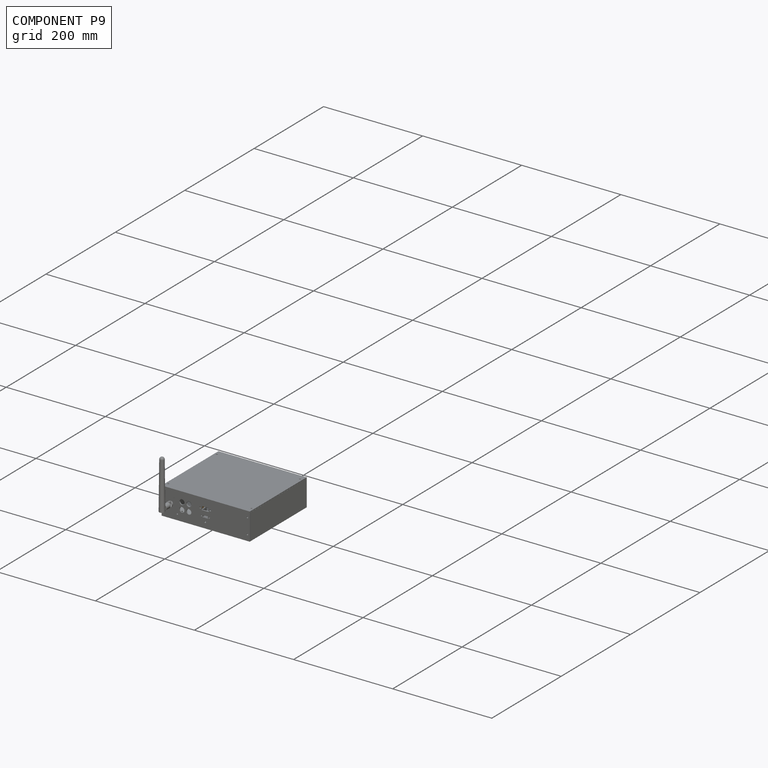
[diagram: component P9 — assembled]
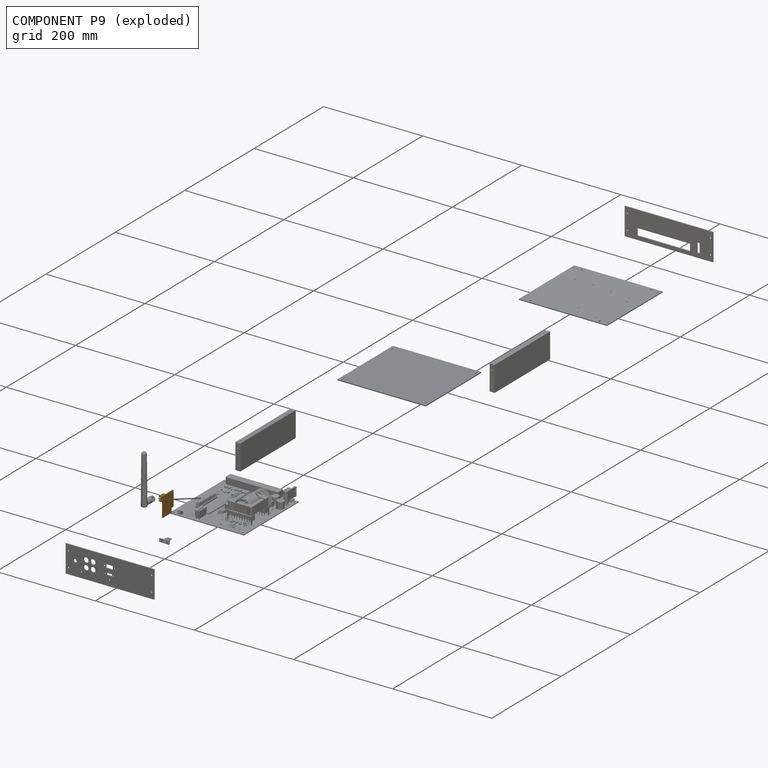
[diagram: component P9 — exploded]
COMPONENT P9 — geometry summary ("analog_input 1"; no construction recipe available for this part):
  bounding box: 39.6 x 31.2 x 10.4 mm
  tessellated surface: 11,392 triangles
  volume: 2436 mm^3 (19% of its bounding box)
Held by: resting contact with P1 (derived edge); resting contact with P6 (derived edge).
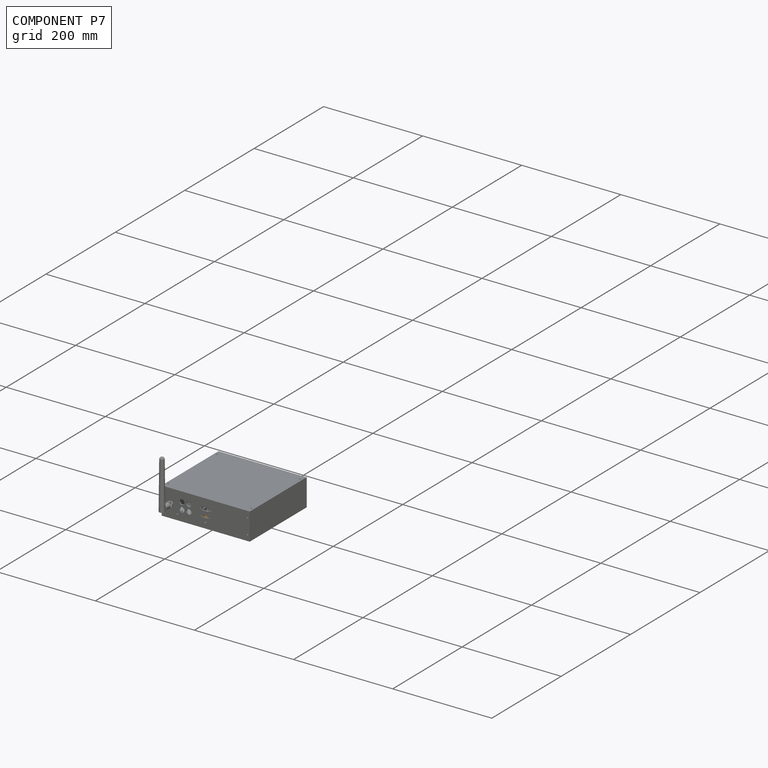
[diagram: component P7 — assembled]
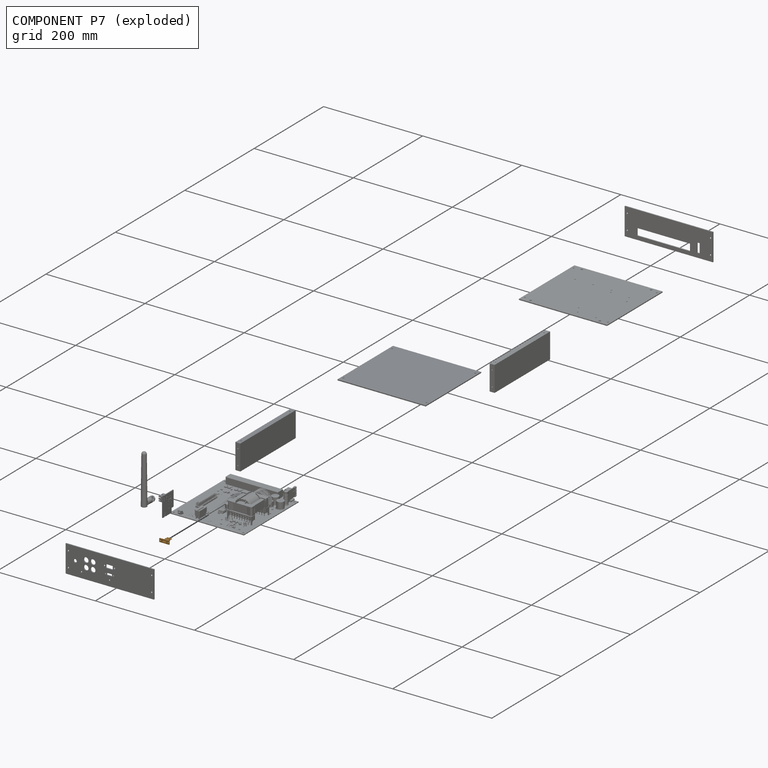
[diagram: component P7 — exploded]
COMPONENT P7 — geometry summary ("USB C female wall mount Assy"; no construction recipe available for this part):
  bounding box: 20.0 x 16.0 x 6.8 mm
  tessellated surface: 4,394 triangles
  volume: 330 mm^3 (15% of its bounding box)
  symmetry: 2-fold rotationally symmetric about the y axis; mirror-symmetric across its x mid-plane, z mid-plane
Held by: resting contact with P1 (derived edge).
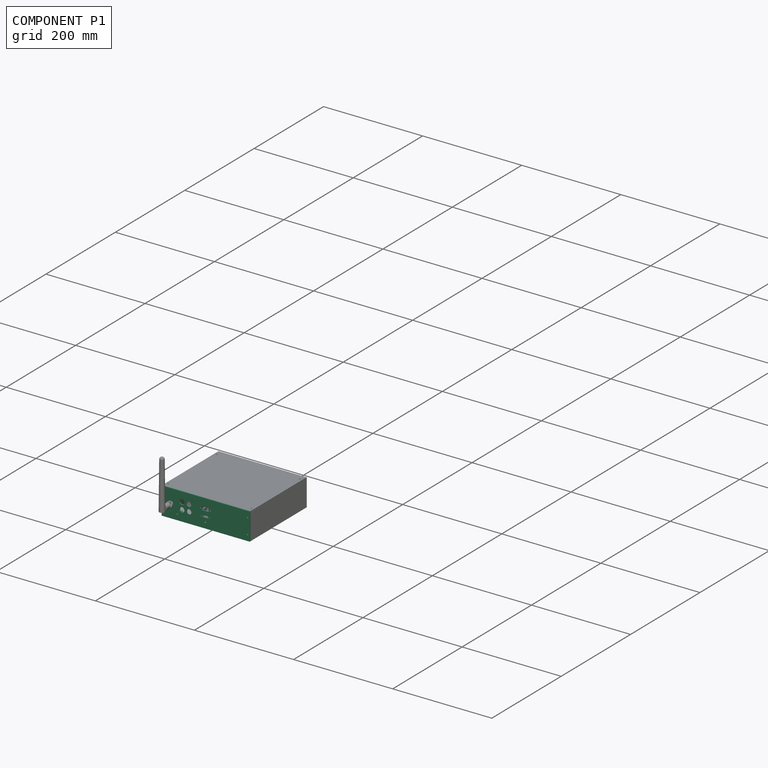
[diagram: component P1 — assembled]
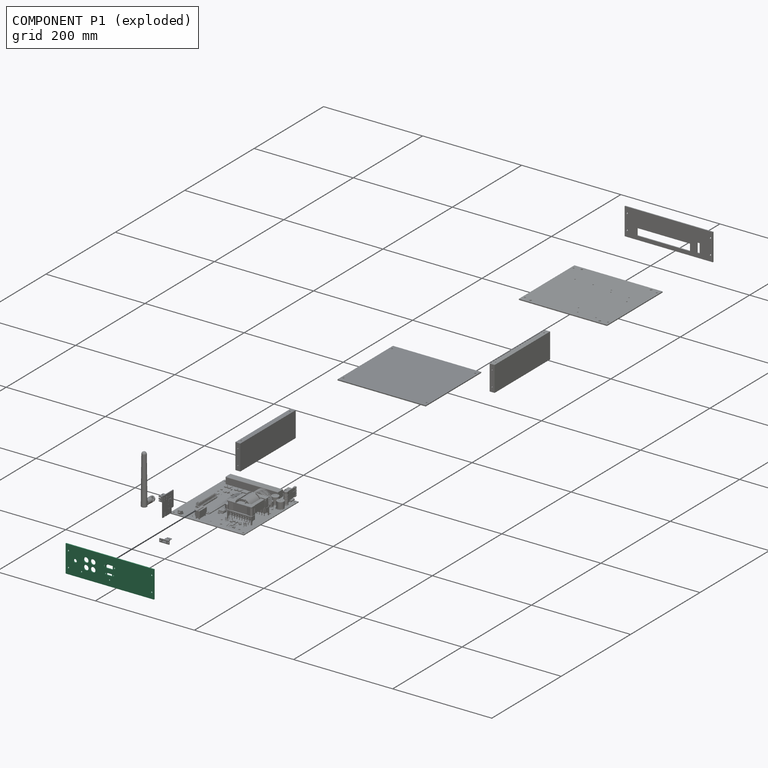
[diagram: component P1 — exploded]
COMPONENT P1 — recipe-attached ("Front", modeled in this document).
Held by: resting contact with P0 (derived edge); resting contact with P3 (derived edge); resting contact with P4 (derived edge); resting contact with P5 (derived edge); resting contact with P6 (derived edge); resting contact with P7 (derived edge); resting contact with P8 (derived edge); resting contact with P9 (derived edge).
Construction recipe (the document's own serialized feature program — sketch geometry with constraints, then the solid features built on it; lengths are millimeters unless a unit is written):

FEATURE [Sketcher::SketchObject] Sketch008
  ArcFitTolerance = 1e-06
  ExternalBSplineMaxDegree = 5
  ExternalBSplineTolerance = 0.0001
  FullyConstrained = true
  InternalTolerance = 1e-06
  InvalidShape = false
  MakeInternals = true
  MapMode = 5
  Placement = pos=(0,-79.8957,-8.9e-15) rot=(1,0,0;1.5708rad)
  TreeRank = 1957
  ValidateShape = false
  sketch-geometry (4):
    g0: LineSegment StartX=-89 StartY=48.5 StartZ=0 EndX=89 EndY=48.5 EndZ=0
    g1: LineSegment StartX=89 StartY=48.5 StartZ=0 EndX=89 EndY=-6.5 EndZ=0
    g2: LineSegment StartX=89 StartY=-6.5 StartZ=0 EndX=-89 EndY=-6.5 EndZ=0
    g3: LineSegment StartX=-89 StartY=-6.5 StartZ=0 EndX=-89 EndY=48.5 EndZ=0
  constraints (12):
    c: Coincident(g0,g1)
    c: Coincident(g1,g2)
    c: Coincident(g2,g3)
    c: Coincident(g3,g0)
    c: Horizontal(g0)
    c: Horizontal(g2)
    c: Vertical(g1)
    c: Vertical(g3)
    c: DistanceY(g1,g1) = 55
    c: DistanceX(g0,g0) = 178
    c: DistanceX(g2,g-1) = 89
    c: DistanceY(g1,g-1) = 6.5
FEATURE [PartDesign::Pad] Pad001
  AddSubType = 0
  AlongSketchNormal = false
  AutoTaperInnerAngle = true
  CheckUpToFaceLimits = true
  ClaimChildren = false
  Direction = (0,-1,-2e-16)
  Fit = 0
  FitJoin = 0
  InnerFit = 0
  InnerFitJoin = 0
  InvalidShape = false
  Length = 2
  Length2 = 10
  Linearize = true
  NewSolid = false
  Profile = -> Sketch008
  ReferenceAxis = -> Sketch008 [N_Axis]
  Suppress = false
  TaperInnerAngle = 0
  TaperInnerAngleRev = 0
  TreeRank = 1958
  Type = 0
  ValidateShape = true
  _ProfileBasedVersion = 1
FEATURE [Sketcher::SketchObject] Sketch009
  ArcFitTolerance = 1e-06
  AttachmentSupport = -> [Pad001]
  ExternalBSplineMaxDegree = 5
  ExternalBSplineTolerance = 0.0001
  FullyConstrained = true
  InternalTolerance = 1e-06
  InvalidShape = false
  MakeInternals = true
  MapMode = 5
  Placement = pos=(0,-81.8957,-2.12e-14) rot=(1,0,0;1.5708rad)
  Support = -> [Pad001]
  TreeRank = 1959
  ValidateShape = false
FEATURE [Sketcher::SketchObject] Sketch010
  ArcFitTolerance = 1e-06
  AttachmentSupport = -> [Pad001]
  ExternalBSplineMaxDegree = 5
  ExternalBSplineTolerance = 0.0001
  FullyConstrained = false
  InternalTolerance = 1e-06
  InvalidShape = false
  MakeInternals = true
  MapMode = 5
  Placement = pos=(0,-81.8957,-2.13e-14) rot=(1,0,0;1.5708rad)
  Support = -> [Pad001]
  TreeRank = 1960
  ValidateShape = false
  sketch-geometry (33):
    g0: Circle CenterX=-84 CenterY=36.5 CenterZ=0 NormalX=0 NormalY=0 NormalZ=1 AngleXU=0 Radius=1.5
    g1: Circle CenterX=84 CenterY=36.5 CenterZ=0 NormalX=0 NormalY=0 NormalZ=1 AngleXU=0 Radius=1.5
    g2: Circle CenterX=84 CenterY=5.5 CenterZ=0 NormalX=0 NormalY=0 NormalZ=1 AngleXU=0 Radius=1.5
    g3: Circle CenterX=-84 CenterY=5.5 CenterZ=0 NormalX=0 NormalY=0 NormalZ=1 AngleXU=0 Radius=1.5
    g4: Circle CenterX=-57.5 CenterY=5.1 CenterZ=0 NormalX=0 NormalY=0 NormalZ=1 AngleXU=0 Radius=1.5
    g5: Circle CenterX=-1 CenterY=5.1 CenterZ=0 NormalX=0 NormalY=0 NormalZ=1 AngleXU=0 Radius=1.5
    g6: Circle CenterX=-48 CenterY=15 CenterZ=0 NormalX=0 NormalY=0 NormalZ=1 AngleXU=0 Radius=5
    g7: Circle CenterX=-11 CenterY=29 CenterZ=0 NormalX=0 NormalY=0 NormalZ=1 AngleXU=0 Radius=1.5
    g8: Circle CenterX=9 CenterY=29 CenterZ=0 NormalX=0 NormalY=0 NormalZ=1 AngleXU=0 Radius=1.5
    g9: Circle CenterX=-8.9 CenterY=15 CenterZ=0 NormalX=0 NormalY=0 NormalZ=1 AngleXU=0 Radius=1.25
    g10: Circle CenterX=6.9 CenterY=15 CenterZ=0 NormalX=0 NormalY=0 NormalZ=1 AngleXU=0 Radius=1.25
    g11: LineSegment StartX=4.5 StartY=13.4857 StartZ=0 EndX=4.5 EndY=16.4343 EndZ=0
    g12: LineSegment StartX=3.93431 StartY=17 StartZ=0 EndX=-6.01432 EndY=17 EndZ=0
    g13: LineSegment StartX=-6.5 StartY=16.5143 StartZ=0 EndX=-6.5 EndY=13.5657 EndZ=0
    g14: LineSegment StartX=-5.93432 StartY=13 StartZ=0 EndX=4.01431 EndY=13 EndZ=0
    g15: GeomPoint [constr] X=-1 Y=15 Z=0
    g16: LineSegment StartX=-8 StartY=31.6501 StartZ=0 EndX=-8 EndY=26.4899 EndZ=0
    g17: LineSegment StartX=-7.01005 StartY=25.5 StartZ=0 EndX=5.01005 EndY=25.5 EndZ=0
    g18: LineSegment StartX=6 StartY=26.4899 StartZ=0 EndX=6 EndY=31.6501 EndZ=0
    g19: LineSegment StartX=5.15005 StartY=32.5 StartZ=0 EndX=-7.15005 EndY=32.5 EndZ=0
    g20: GeomPoint [constr] X=-1 Y=29 Z=0
    g21: Circle CenterX=-70 CenterY=21.6 CenterZ=0 NormalX=0 NormalY=0 NormalZ=1 AngleXU=0 Radius=3.25
    g22: Circle CenterX=-34 CenterY=29 CenterZ=0 NormalX=0 NormalY=0 NormalZ=1 AngleXU=0 Radius=5
    g23: Circle CenterX=-34 CenterY=15 CenterZ=0 NormalX=0 NormalY=0 NormalZ=1 AngleXU=0 Radius=5
    g24: Circle CenterX=-48 CenterY=29 CenterZ=0 NormalX=0 NormalY=0 NormalZ=1 AngleXU=0 Radius=5
    g25: ArcOfCircle CenterX=-5.93432 CenterY=13.5657 CenterZ=0 NormalX=0 NormalY=0 NormalZ=1 AngleXU=0 Radius=0.565685 StartAngle=3.14159 EndAngle=4.71239
    g26: ArcOfCircle CenterX=-6.01432 CenterY=16.5143 CenterZ=0 NormalX=0 NormalY=0 NormalZ=1 AngleXU=0 Radius=0.485685 StartAngle=1.5708 EndAngle=3.14159
    g27: ArcOfCircle CenterX=3.93431 CenterY=16.4343 CenterZ=0 NormalX=0 NormalY=0 NormalZ=1 AngleXU=0 Radius=0.565685 StartAngle=0 EndAngle=1.5708
    g28: ArcOfCircle CenterX=4.01431 CenterY=13.4857 CenterZ=0 NormalX=0 NormalY=0 NormalZ=1 AngleXU=0 Radius=0.485685 StartAngle=4.71239 EndAngle=6.28319
    g29: ArcOfCircle CenterX=-7.01005 CenterY=26.4899 CenterZ=0 NormalX=0 NormalY=0 NormalZ=1 AngleXU=0 Radius=0.989949 StartAngle=3.14159 EndAngle=4.71239
    g30: ArcOfCircle CenterX=5.01005 CenterY=26.4899 CenterZ=0 NormalX=0 NormalY=0 NormalZ=1 AngleXU=0 Radius=0.989949 StartAngle=4.71239 EndAngle=6.28319
    g31: ArcOfCircle CenterX=5.15005 CenterY=31.6501 CenterZ=0 NormalX=0 NormalY=0 NormalZ=1 AngleXU=0 Radius=0.84995 StartAngle=1e-16 EndAngle=1.5708
    g32: ArcOfCircle CenterX=-7.15005 CenterY=31.6501 CenterZ=0 NormalX=0 NormalY=0 NormalZ=1 AngleXU=0 Radius=0.84995 StartAngle=1.5708 EndAngle=3.14159
  constraints (72):
    c: Diameter(g0) = 3
    c: DistanceX(g0,g-1) = 84
    c: DistanceY(g-1,g0) = 36.5
    c: Diameter(g1) = 3
    c: DistanceX(g-1,g1) = 84
    c: DistanceY(g-1,g1) = 36.5
    c: Diameter(g2) = 3
    c: DistanceX(g-1,g2) = 84
    c: DistanceY(g-1,g2) = 5.5
    c: Diameter(g3) = 3
    c: DistanceX(g3,g-1) = 84
    c: DistanceY(g-1,g3) = 5.5
    c: Diameter(g4) = 3
    c: DistanceX(g4,g-1) = 57.5
    c: DistanceY(g-1,g4) = 5.1
    c: Diameter(g5) = 3
    c: DistanceY(g-1,g5) = 5.1
    c: DistanceX(g5,g-1) = 1
    c: Diameter(g6) = 10
    c: Diameter(g8) = 3
    c: Diameter(g7) = 3
    c: DistanceX(g7,g8) = 20
    c: DistanceX(g8,g-1) = -9
    c: Horizontal(g8,g7)
    c: DistanceY(g-1,g8) = 29
    c: Diameter(g10) = 2.5
    c: Diameter(g9) = 2.5
    c: Horizontal(g10,g9)
    c: DistanceX(g10,g-1) = -6.9
    c: DistanceX(g9,g10) = 15.8
    c: Horizontal(g12)
    c: Horizontal(g14)
    c: Vertical(g11)
    c: Vertical(g13)
    c: Horizontal(g15,g10)
    c: DistanceX(g15,g10) = 7.9
    c: Horizontal(g17)
    c: Horizontal(g19)
    c: Vertical(g16)
    c: Vertical(g18)
    c: DistanceX(g20,g8) = 10
    c: Diameter(g21) = 6.5
    c: DistanceX(g21,g-1) = 70
    c: DistanceY(g-1,g21) = 21.6
    c: DistanceY(g-1,g10) = 15
    c: Diameter(g23) = 10
    c: Diameter(g22) = 10
    c: Vertical(g22,g23)
    c: DistanceX(g23,g-1) = 34
    c: DistanceY(g-1,g23) = 15
    c: DistanceY(g23,g22) = 14
    c: DistanceX(g6,g23) = 14
    c: Diameter(g24) = 10
    c: Vertical(g6,g24)
    c: Horizontal(g24,g22)
    c: Horizontal(g23,g6)
    c: Tangent(g13,g25) = -1.5708
    c: Tangent(g14,g25) = -1.5708
    c: Tangent(g12,g26) = -1.5708
    c: Tangent(g13,g26) = -1.5708
    c: Tangent(g11,g27) = -1.5708
    c: Tangent(g12,g27) = -1.5708
    c: Tangent(g11,g28) = -1.5708
    c: Tangent(g14,g28) = -1.5708
    c: Tangent(g16,g29) = -1.5708
    c: Tangent(g17,g29) = -1.5708
    c: Tangent(g17,g30) = -1.5708
    c: Tangent(g18,g30) = -1.5708
    c: Tangent(g18,g31) = -1.5708
    c: Tangent(g19,g31) = -1.5708
    c: Tangent(g16,g32) = -1.5708
    c: Tangent(g19,g32) = -1.5708
FEATURE [PartDesign::Pocket] Pocket007
  AddSubType = 1
  AlongSketchNormal = false
  AutoTaperInnerAngle = true
  BaseFeature = -> Pad001
  CheckUpToFaceLimits = true
  ClaimChildren = false
  Direction = (0,1,2e-16)
  Fit = 0
  FitJoin = 0
  InnerFit = 0
  InnerFitJoin = 0
  InvalidShape = false
  Length = 2
  Length2 = 10
  Linearize = true
  NewSolid = false
  Profile = -> Sketch010
  ReferenceAxis = -> Sketch010 [N_Axis]
  Suppress = false
  TaperInnerAngle = 0
  TaperInnerAngleRev = 0
  TreeRank = 1961
  Type = 0
  ValidateShape = true
  _ProfileBasedVersion = 1
  _Version = 1
FEATURE [PartDesign::Body] Body001  label="Front"
  AutoGroupSolids = false
  ClaimAllChildren = false
  ExportMode = 0
  Group = -> [Sketch008,Pad001,Sketch009,Sketch010,Pocket007]
  InvalidShape = false
  Origin = -> Origin080
  Tip = -> Pocket007
  TreeRank = 1956
  ValidateShape = false
  _ExportChildren = -> [Pad001,Sketch009,Pocket007]
  _GroupVersion = 1
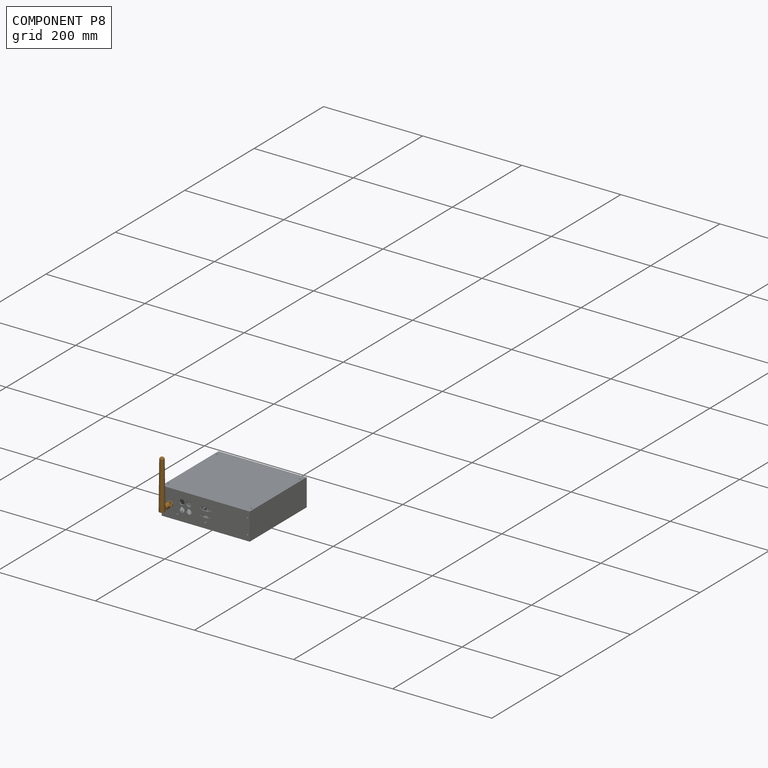
[diagram: component P8 — assembled]
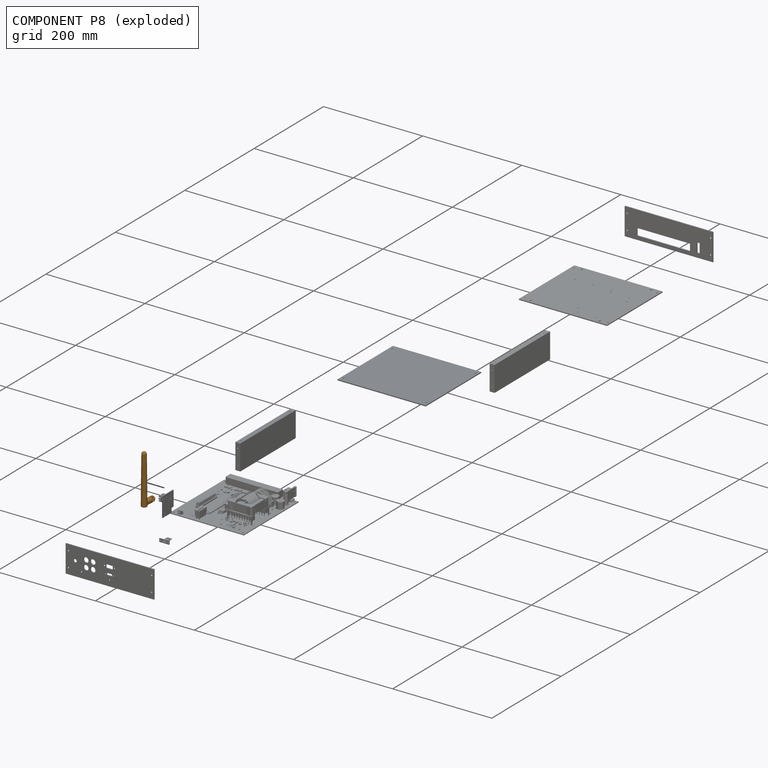
[diagram: component P8 — exploded]
COMPONENT P8 — geometry summary ("antenna_WiFi_RP-SMA_conn v2"; no construction recipe available for this part):
  bounding box: 100.5 x 30.9 x 11.1 mm
  tessellated surface: 28,091 triangles
  volume: 5611 mm^3 (16% of its bounding box)
  symmetry: mirror-symmetric across its x mid-plane
Held by: resting contact with P1 (derived edge).
PROVENANCE & LICENSES
Assembly and component geometry: a FreeCAD (.FCStd) document from a public repository crawl; components, placements and joints were extracted with FreeCAD and each solid tessellated.
Construction recipes: the document's own serialized feature recipes (and, for linked parts, the recipes of companion documents from the same project).
License: as declared in the source repository (recorded in the dataset sidecar).
Joints: native FreeCAD joints and A2plus constraints are mapped to standard mate types; edges marked 'derived from contact' connect touching components and are measured from the geometry, not modeled.
Verification: 6 of this assembly's 10 components carry a construction recipe (6 from this document itself); the rest are geometry-only. Every component's tessellation passed the extraction mesh gates (mesh-volume checksum against the B-rep where available, bounding-box inflation <= 2%).
Renders: orthographic iso camera (az 35 / el 25); the floor grid conveys scale (grid pitch printed in each image; no ruler). In the exploded view each component is displaced by its stored offset vector: the offsets alone carry the explosion direction (mate normal/axis signs are not orientation cues and do not encode it), and separation distances are assigned per mate-chain, not proportionally to assembly-order depth.
